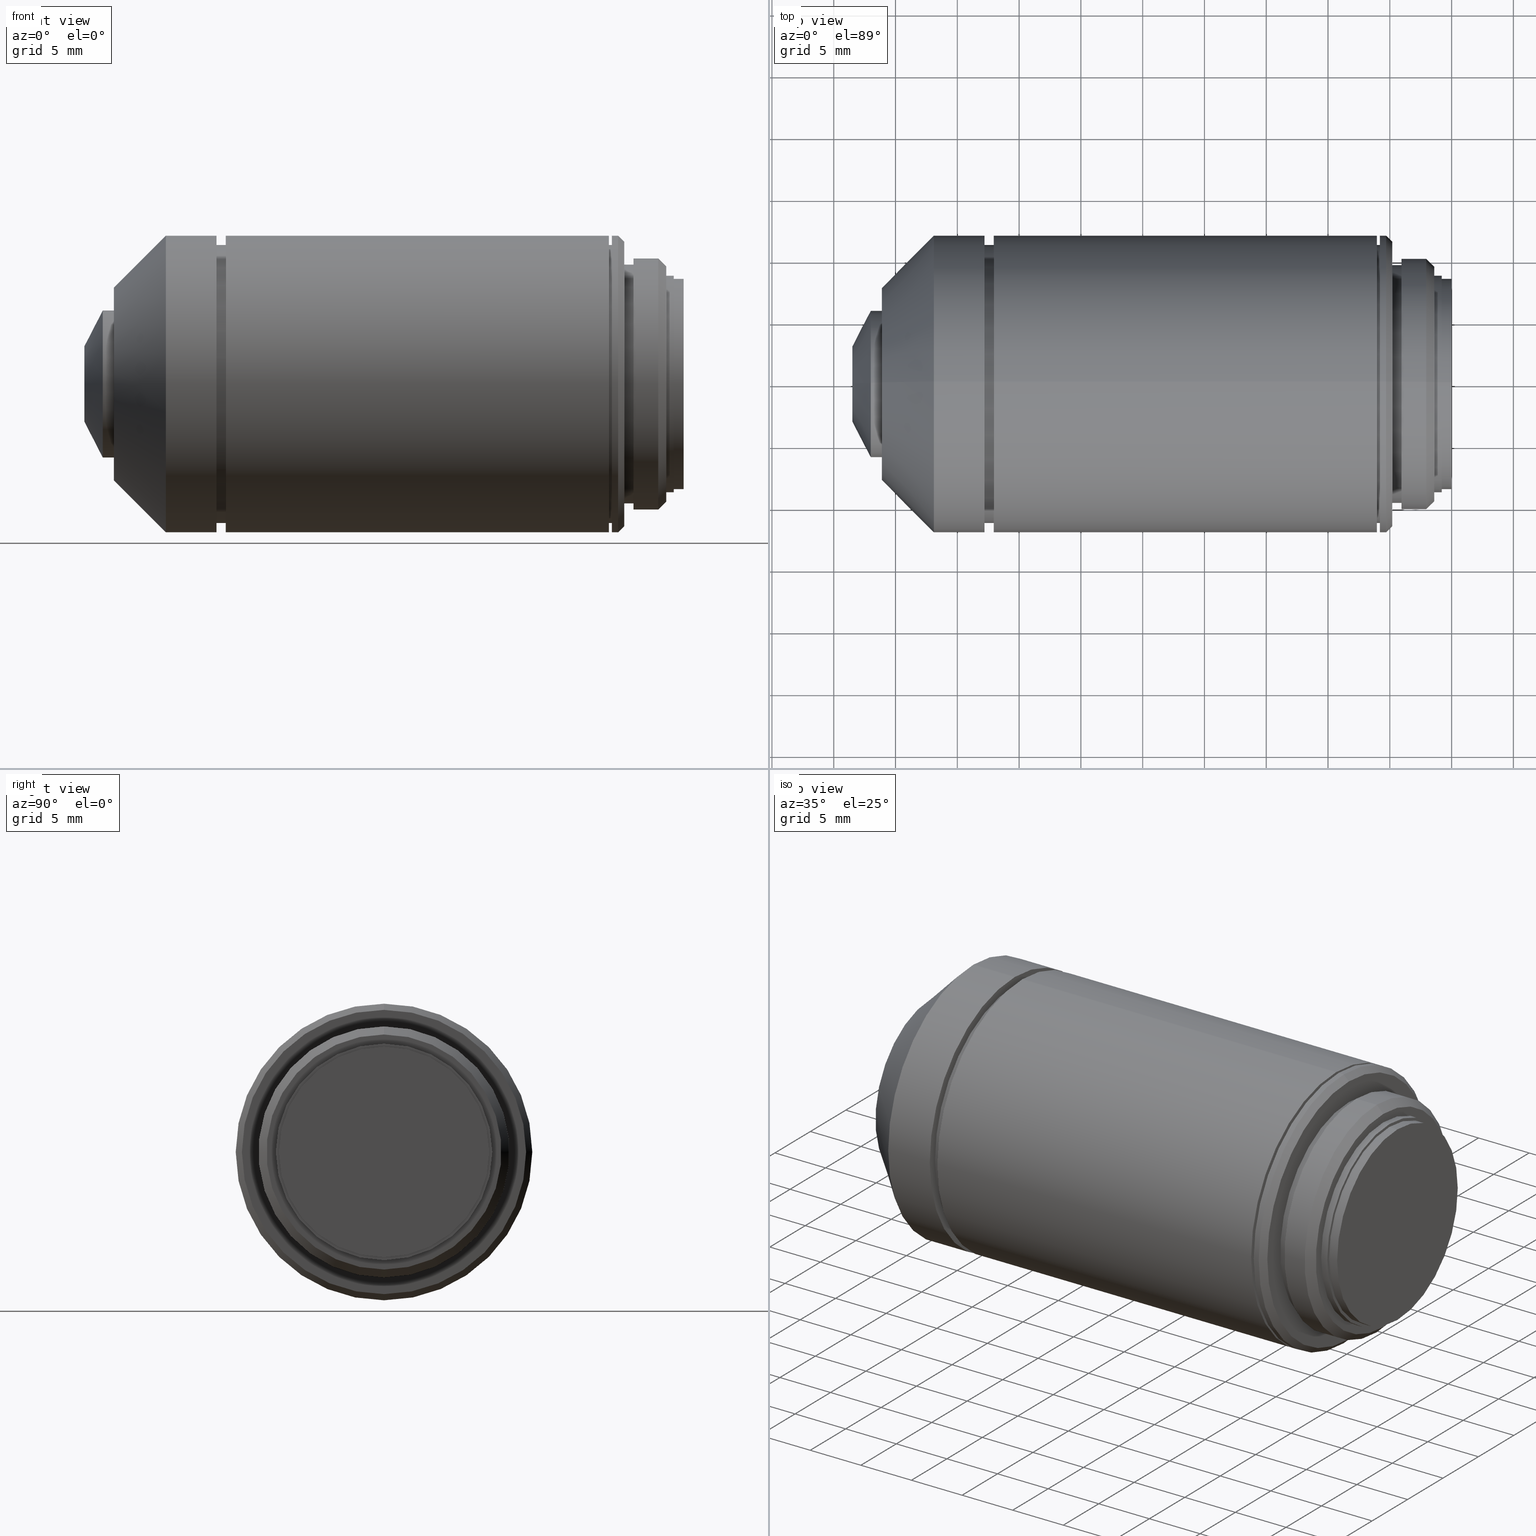
[diagram: canonical four-view strip — front | top / right | iso, engineering-drawing reading convention]
A machine part, canonical four-view strip (front | top / right | iso — engineering-drawing reading convention). The complete STEP part file that produces these views, byte-faithful:
ISO-10303-21;
HEADER;
FILE_DESCRIPTION (( 'STEP AP203' ),
    '1' );
FILE_NAME ('690064.step',
    '2025-04-14T08:43:51',
    ( 'MSI' ),
    ( '' ),
    'SwSTEP 2.0',
    'SolidWorks 2020',
    '' );
FILE_SCHEMA (( 'CONFIG_CONTROL_DESIGN' ));
ENDSEC;

DATA;
#1 = EDGE_LOOP ( 'NONE', ( #1015, #723, #824, #560 ) ) ;
#2 = DIRECTION ( 'NONE',  ( 1.000000000000000000, 0.000000000000000000, 0.000000000000000000 ) ) ;
#3 = DIRECTION ( 'NONE',  ( 1.000000000000000000, 0.000000000000000000, 0.000000000000000000 ) ) ;
#4 = EDGE_CURVE ( 'NONE', #915, #930, #1031, .T. ) ;
#5 = AXIS2_PLACEMENT_3D ( 'NONE', #633, #379, #454 ) ;
#6 = CARTESIAN_POINT ( 'NONE',  ( -0.8000000000000000444, 0.000000000000000000, -8.509999999999999787 ) ) ;
#7 = DIRECTION ( 'NONE',  ( 1.000000000000000000, 0.000000000000000000, 0.000000000000000000 ) ) ;
#8 = CARTESIAN_POINT ( 'NONE',  ( 29.85526709101650056, 0.000000000000000000, 0.000000000000000000 ) ) ;
#9 = CC_DESIGN_PERSON_AND_ORGANIZATION_ASSIGNMENT ( #416, #489, ( #591 ) ) ;
#10 = CARTESIAN_POINT ( 'NONE',  ( -0.8000000000000000444, 8.759999999999999787, 0.000000000000000000 ) ) ;
#11 = DIRECTION ( 'NONE',  ( 1.000000000000000000, 0.000000000000000000, 0.000000000000000000 ) ) ;
#12 = CARTESIAN_POINT ( 'NONE',  ( 29.85526709101650056, 0.000000000000000000, 0.000000000000000000 ) ) ;
#13 = FACE_OUTER_BOUND ( 'NONE', #1009, .T. ) ;
#14 = AXIS2_PLACEMENT_3D ( 'NONE', #599, #181, #435 ) ;
#15 = EDGE_CURVE ( 'NONE', #122, #915, #595, .T. ) ;
#16 = CIRCLE ( 'NONE', #456, 7.799999999999999822 ) ;
#17 = DIRECTION ( 'NONE',  ( 1.000000000000000000, 0.000000000000000000, 0.000000000000000000 ) ) ;
#18 = CONICAL_SURFACE ( 'NONE', #1010, 5.950000000000000178, 1.096175221382899689 ) ;
#19 = LINE ( 'NONE', #112, #779 ) ;
#20 = CARTESIAN_POINT ( 'NONE',  ( -41.89999999999999858, 0.000000000000000000, -12.00000000000000000 ) ) ;
#21 = ORIENTED_EDGE ( 'NONE', *, *, #370, .F. ) ;
#22 = AXIS2_PLACEMENT_3D ( 'NONE', #811, #1046, #1054 ) ;
#23 = EDGE_CURVE ( 'NONE', #556, #890, #145, .T. ) ;
#24 = DIRECTION ( 'NONE',  ( 1.000000000000000000, 0.000000000000000000, 0.000000000000000000 ) ) ;
#25 = DIRECTION ( 'NONE',  ( 1.000000000000000000, 0.000000000000000000, 0.000000000000000000 ) ) ;
#26 = COORDINATED_UNIVERSAL_TIME_OFFSET ( 8, 0, .AHEAD. ) ;
#27 = ORIENTED_EDGE ( 'NONE', *, *, #1020, .F. ) ;
#28 = DIRECTION ( 'NONE',  ( 1.000000000000000000, 0.000000000000000000, 0.000000000000000000 ) ) ;
#29 = DIRECTION ( 'NONE',  ( 0.000000000000000000, 0.000000000000000000, -1.000000000000000000 ) ) ;
#30 = VECTOR ( 'NONE', #995, 1000.000000000000000 ) ;
#31 = EDGE_LOOP ( 'NONE', ( #948, #235 ) ) ;
#32 = DIRECTION ( 'NONE',  ( 0.000000000000000000, 0.000000000000000000, -1.000000000000000000 ) ) ;
#33 = AXIS2_PLACEMENT_3D ( 'NONE', #1090, #335, #360 ) ;
#34 = APPROVAL_PERSON_ORGANIZATION ( #597, #387, #101 ) ;
#35 = CARTESIAN_POINT ( 'NONE',  ( -1.399999999999999911, 1.164639105989131874E-15, -9.509999999999999787 ) ) ;
#36 = EDGE_CURVE ( 'NONE', #728, #763, #770, .T. ) ;
#37 = ORIENTED_EDGE ( 'NONE', *, *, #822, .F. ) ;
#38 = CIRCLE ( 'NONE', #346, 11.25000000000000000 ) ;
#39 = CARTESIAN_POINT ( 'NONE',  ( 29.85526709101650056, 0.000000000000000000, 0.000000000000000000 ) ) ;
#40 = CARTESIAN_POINT ( 'NONE',  ( -41.89999999999999858, 0.000000000000000000, 0.000000000000000000 ) ) ;
#41 = CC_DESIGN_PERSON_AND_ORGANIZATION_ASSIGNMENT ( #428, #530, ( #726 ) ) ;
#42 = EDGE_LOOP ( 'NONE', ( #634, #1041 ) ) ;
#43 = DIRECTION ( 'NONE',  ( 0.000000000000000000, 0.000000000000000000, -1.000000000000000000 ) ) ;
#44 = CARTESIAN_POINT ( 'NONE',  ( -5.799999999999999822, 11.25000000000000000, 0.000000000000000000 ) ) ;
#45 = EDGE_LOOP ( 'NONE', ( #1060, #496 ) ) ;
#46 = AXIS2_PLACEMENT_3D ( 'NONE', #653, #62, #570 ) ;
#47 = ADVANCED_FACE ( 'NONE', ( #187, #97 ), #600, .T. ) ;
#48 = ORIENTED_EDGE ( 'NONE', *, *, #237, .F. ) ;
#49 = DIRECTION ( 'NONE',  ( 1.000000000000000000, 0.000000000000000000, 0.000000000000000000 ) ) ;
#50 = DIRECTION ( 'NONE',  ( 0.000000000000000000, 0.000000000000000000, -1.000000000000000000 ) ) ;
#51 = CIRCLE ( 'NONE', #626, 11.25000000000000000 ) ;
#52 = ORIENTED_EDGE ( 'NONE', *, *, #175, .T. ) ;
#53 = VECTOR ( 'NONE', #613, 1000.000000000000000 ) ;
#54 = EDGE_CURVE ( 'NONE', #423, #322, #906, .T. ) ;
#55 = VERTEX_POINT ( 'NONE', #1030 ) ;
#56 = CARTESIAN_POINT ( 'NONE',  ( -4.799999999999999822, 0.000000000000000000, 0.000000000000000000 ) ) ;
#57 = DIRECTION ( 'NONE',  ( 0.000000000000000000, 0.000000000000000000, -1.000000000000000000 ) ) ;
#58 = ORIENTED_EDGE ( 'NONE', *, *, #431, .T. ) ;
#59 = DIRECTION ( 'NONE',  ( 1.000000000000000000, 0.000000000000000000, 0.000000000000000000 ) ) ;
#60 = EDGE_LOOP ( 'NONE', ( #759, #571 ) ) ;
#61 = LINE ( 'NONE', #841, #725 ) ;
#62 = DIRECTION ( 'NONE',  ( -1.000000000000000000, 0.000000000000000000, 0.000000000000000000 ) ) ;
#63 = ORIENTED_EDGE ( 'NONE', *, *, #888, .T. ) ;
#64 = DIRECTION ( 'NONE',  ( 0.000000000000000000, 0.000000000000000000, -1.000000000000000000 ) ) ;
#65 = VERTEX_POINT ( 'NONE', #623 ) ;
#66 = AXIS2_PLACEMENT_3D ( 'NONE', #758, #409, #828 ) ;
#67 = DIRECTION ( 'NONE',  ( 1.000000000000000000, 0.000000000000000000, 0.000000000000000000 ) ) ;
#68 = CARTESIAN_POINT ( 'NONE',  ( -4.799999999999999822, 0.000000000000000000, 0.000000000000000000 ) ) ;
#69 = CIRCLE ( 'NONE', #209, 11.25000000000000000 ) ;
#70 = ADVANCED_FACE ( 'NONE', ( #950 ), #1048, .T. ) ;
#71 = ORIENTED_EDGE ( 'NONE', *, *, #200, .T. ) ;
#72 = VECTOR ( 'NONE', #244, 1000.000000000000000 ) ;
#73 = DATE_AND_TIME ( #495, #801 ) ;
#74 = VERTEX_POINT ( 'NONE', #193 ) ;
#75 = CARTESIAN_POINT ( 'NONE',  ( -46.10000000000000142, 1.212400331155879899E-15, 7.799999999999999822 ) ) ;
#76 = LINE ( 'NONE', #677, #1007 ) ;
#77 = AXIS2_PLACEMENT_3D ( 'NONE', #10, #684, #694 ) ;
#78 = VERTEX_POINT ( 'NONE', #6 ) ;
#79 = EDGE_CURVE ( 'NONE', #561, #890, #178, .T. ) ;
#80 = ORIENTED_EDGE ( 'NONE', *, *, #337, .F. ) ;
#81 = DIRECTION ( 'NONE',  ( 1.000000000000000000, 0.000000000000000000, 0.000000000000000000 ) ) ;
#82 = PLANE ( 'NONE',  #404 ) ;
#83 = ORIENTED_EDGE ( 'NONE', *, *, #337, .T. ) ;
#84 = COORDINATED_UNIVERSAL_TIME_OFFSET ( 8, 0, .AHEAD. ) ;
#85 = ORIENTED_EDGE ( 'NONE', *, *, #522, .F. ) ;
#86 = ADVANCED_FACE ( 'NONE', ( #116 ), #519, .T. ) ;
#87 = DIRECTION ( 'NONE',  ( 1.000000000000000000, 0.000000000000000000, 0.000000000000000000 ) ) ;
#88 = AXIS2_PLACEMENT_3D ( 'NONE', #376, #1050, #391 ) ;
#89 = CARTESIAN_POINT ( 'NONE',  ( -48.48999999999999488, 3.050000000000000266, 0.000000000000000000 ) ) ;
#90 = DIRECTION ( 'NONE',  ( 1.000000000000000000, 0.000000000000000000, 0.000000000000000000 ) ) ;
#91 = AXIS2_PLACEMENT_3D ( 'NONE', #542, #1049, #872 ) ;
#92 = PERSON_AND_ORGANIZATION ( #336, #458 ) ;
#93 = CIRCLE ( 'NONE', #990, 10.16000000000000014 ) ;
#94 = CARTESIAN_POINT ( 'NONE',  ( -46.10000000000000142, 7.799999999999999822, 0.000000000000000000 ) ) ;
#95 = ADVANCED_FACE ( 'NONE', ( #1023, #617 ), #854, .T. ) ;
#96 = PLANE ( 'NONE',  #14 ) ;
#97 = FACE_BOUND ( 'NONE', #31, .T. ) ;
#98 = CARTESIAN_POINT ( 'NONE',  ( -47.00000000000000000, 0.000000000000000000, 0.000000000000000000 ) ) ;
#99 = PLANE ( 'NONE',  #157 ) ;
#100 = CARTESIAN_POINT ( 'NONE',  ( -5.799999999999999822, 0.000000000000000000, -11.25000000000000000 ) ) ;
#101 = APPROVAL_ROLE ( '' ) ;
#102 = CARTESIAN_POINT ( 'NONE',  ( -6.049999999999999822, 0.000000000000000000, 0.000000000000000000 ) ) ;
#103 = LINE ( 'NONE', #425, #692 ) ;
#104 = DIRECTION ( 'NONE',  ( 1.000000000000000000, 0.000000000000000000, 0.000000000000000000 ) ) ;
#105 = AXIS2_PLACEMENT_3D ( 'NONE', #847, #24, #523 ) ;
#106 = EDGE_CURVE ( 'NONE', #230, #154, #38, .T. ) ;
#107 = APPROVAL_STATUS ( 'not_yet_approved' ) ;
#108 = VERTEX_POINT ( 'NONE', #20 ) ;
#109 = CIRCLE ( 'NONE', #341, 7.799999999999999822 ) ;
#110 = EDGE_LOOP ( 'NONE', ( #243, #812, #1077, #920 ) ) ;
#111 = APPROVAL_PERSON_ORGANIZATION ( #914, #829, #311 ) ;
#112 = CARTESIAN_POINT ( 'NONE',  ( 29.85526709101650056, 1.183008807976344079E-15, 9.660000000000000142 ) ) ;
#113 = DIRECTION ( 'NONE',  ( 0.000000000000000000, 0.000000000000000000, -1.000000000000000000 ) ) ;
#114 = ORIENTED_EDGE ( 'NONE', *, *, #715, .T. ) ;
#115 = CARTESIAN_POINT ( 'NONE',  ( -37.79999999999999716, 0.000000000000000000, -12.00000000000000000 ) ) ;
#116 = FACE_OUTER_BOUND ( 'NONE', #679, .T. ) ;
#117 = VERTEX_POINT ( 'NONE', #777 ) ;
#118 = EDGE_CURVE ( 'NONE', #639, #55, #572, .T. ) ;
#119 = DIRECTION ( 'NONE',  ( 1.000000000000000000, 0.000000000000000000, 0.000000000000000000 ) ) ;
#120 = CARTESIAN_POINT ( 'NONE',  ( -41.89999999999999858, 0.000000000000000000, -12.00000000000000000 ) ) ;
#121 = AXIS2_PLACEMENT_3D ( 'NONE', #547, #554, #718 ) ;
#122 = VERTEX_POINT ( 'NONE', #782 ) ;
#123 = DIRECTION ( 'NONE',  ( 0.000000000000000000, 0.000000000000000000, -1.000000000000000000 ) ) ;
#124 = AXIS2_PLACEMENT_3D ( 'NONE', #506, #81, #394 ) ;
#125 = CC_DESIGN_PERSON_AND_ORGANIZATION_ASSIGNMENT ( #1081, #326, ( #319 ) ) ;
#126 = APPLICATION_CONTEXT ( 'configuration controlled 3d designs of mechanical parts and assemblies' ) ;
#127 = CC_DESIGN_SECURITY_CLASSIFICATION ( #478, ( #726 ) ) ;
#128 = CYLINDRICAL_SURFACE ( 'NONE', #88, 11.25000000000000000 ) ;
#129 = ORIENTED_EDGE ( 'NONE', *, *, #844, .T. ) ;
#130 = DIRECTION ( 'NONE',  ( 0.000000000000000000, 0.000000000000000000, 1.000000000000000000 ) ) ;
#131 = DIRECTION ( 'NONE',  ( -0.7071067811865460184, 8.659560562354948882E-17, -0.7071067811865489050 ) ) ;
#132 = ADVANCED_FACE ( 'NONE', ( #13 ), #687, .T. ) ;
#133 = ORIENTED_EDGE ( 'NONE', *, *, #1082, .F. ) ;
#134 = ORIENTED_EDGE ( 'NONE', *, *, #4, .T. ) ;
#135 = LINE ( 'NONE', #382, #970 ) ;
#136 = CYLINDRICAL_SURFACE ( 'NONE', #259, 10.16000000000000014 ) ;
#137 = ORIENTED_EDGE ( 'NONE', *, *, #553, .T. ) ;
#138 = ADVANCED_FACE ( 'NONE', ( #941 ), #482, .T. ) ;
#139 = VECTOR ( 'NONE', #738, 1000.000000000000000 ) ;
#140 = ORIENTED_EDGE ( 'NONE', *, *, #200, .F. ) ;
#141 = FACE_OUTER_BOUND ( 'NONE', #577, .T. ) ;
#142 = CIRCLE ( 'NONE', #407, 11.50000000000000000 ) ;
#143 = DIRECTION ( 'NONE',  ( 0.000000000000000000, 0.000000000000000000, -1.000000000000000000 ) ) ;
#144 = EDGE_LOOP ( 'NONE', ( #223, #999, #295, #1055 ) ) ;
#145 = CIRCLE ( 'NONE', #462, 11.25000000000000000 ) ;
#146 = VERTEX_POINT ( 'NONE', #348 ) ;
#147 = PLANE ( 'NONE',  #339 ) ;
#148 = CARTESIAN_POINT ( 'NONE',  ( -5.698905636047159547E-16, 8.509999999999999787, 0.000000000000000000 ) ) ;
#149 = ORIENTED_EDGE ( 'NONE', *, *, #4, .F. ) ;
#150 = EDGE_LOOP ( 'NONE', ( #377, #137 ) ) ;
#151 = CARTESIAN_POINT ( 'NONE',  ( -1.399999999999999911, 0.000000000000000000, 0.000000000000000000 ) ) ;
#152 = ADVANCED_FACE ( 'NONE', ( #788 ), #698, .T. ) ;
#153 = DIRECTION ( 'NONE',  ( 1.000000000000000000, 0.000000000000000000, 0.000000000000000000 ) ) ;
#154 = VERTEX_POINT ( 'NONE', #100 ) ;
#155 = CYLINDRICAL_SURFACE ( 'NONE', #586, 12.00000000000000000 ) ;
#156 = ORIENTED_EDGE ( 'NONE', *, *, #1020, .T. ) ;
#157 = AXIS2_PLACEMENT_3D ( 'NONE', #89, #853, #527 ) ;
#158 = CARTESIAN_POINT ( 'NONE',  ( -37.04999999999999716, 1.469576158976823947E-15, 12.00000000000000000 ) ) ;
#159 = DIRECTION ( 'NONE',  ( 1.000000000000000000, 0.000000000000000000, 0.000000000000000000 ) ) ;
#160 = ADVANCED_FACE ( 'NONE', ( #367 ), #1019, .T. ) ;
#161 = EDGE_LOOP ( 'NONE', ( #220, #568, #83, #927 ) ) ;
#162 = CIRCLE ( 'NONE', #263, 12.00000000000000000 ) ;
#163 = APPLICATION_PROTOCOL_DEFINITION ( 'international standard', 'config_control_design', 1994, #954 ) ;
#164 = CC_DESIGN_APPROVAL ( #829, ( #319 ) ) ;
#165 = ORIENTED_EDGE ( 'NONE', *, *, #631, .T. ) ;
#166 = DIRECTION ( 'NONE',  ( 1.000000000000000000, 0.000000000000000000, 0.000000000000000000 ) ) ;
#167 = CARTESIAN_POINT ( 'NONE',  ( -6.049999999999999822, 0.000000000000000000, 0.000000000000000000 ) ) ;
#168 = ORIENTED_EDGE ( 'NONE', *, *, #1067, .T. ) ;
#169 = ADVANCED_FACE ( 'NONE', ( #540 ), #362, .T. ) ;
#170 = DIRECTION ( 'NONE',  ( 1.000000000000000000, 0.000000000000000000, 0.000000000000000000 ) ) ;
#171 = VERTEX_POINT ( 'NONE', #798 ) ;
#172 = DIRECTION ( 'NONE',  ( 1.000000000000000000, 0.000000000000000000, 0.000000000000000000 ) ) ;
#173 = DIRECTION ( 'NONE',  ( 1.000000000000000000, 0.000000000000000000, 0.000000000000000000 ) ) ;
#174 = ORIENTED_EDGE ( 'NONE', *, *, #449, .F. ) ;
#175 = EDGE_CURVE ( 'NONE', #564, #78, #696, .T. ) ;
#176 = CARTESIAN_POINT ( 'NONE',  ( -4.799999999999999822, 0.000000000000000000, 11.50000000000000000 ) ) ;
#177 = DIRECTION ( 'NONE',  ( 1.000000000000000000, 0.000000000000000000, 0.000000000000000000 ) ) ;
#178 = LINE ( 'NONE', #863, #53 ) ;
#179 = AXIS2_PLACEMENT_3D ( 'NONE', #320, #590, #64 ) ;
#180 = LINE ( 'NONE', #520, #567 ) ;
#181 = DIRECTION ( 'NONE',  ( 1.000000000000000000, 0.000000000000000000, 0.000000000000000000 ) ) ;
#182 = CARTESIAN_POINT ( 'NONE',  ( 29.85526709101650056, 0.000000000000000000, 0.000000000000000000 ) ) ;
#183 = COORDINATED_UNIVERSAL_TIME_OFFSET ( 8, 0, .AHEAD. ) ;
#184 = CARTESIAN_POINT ( 'NONE',  ( 29.85526709101650056, 1.469576158976821975E-15, 12.00000000000000000 ) ) ;
#185 = DIRECTION ( 'NONE',  ( 1.000000000000000000, 0.000000000000000000, 0.000000000000000000 ) ) ;
#186 = EDGE_CURVE ( 'NONE', #672, #397, #1014, .T. ) ;
#187 = FACE_OUTER_BOUND ( 'NONE', #42, .T. ) ;
#188 = CALENDAR_DATE ( 2025, 14, 4 ) ;
#189 = ORIENTED_EDGE ( 'NONE', *, *, #1025, .F. ) ;
#190 = CARTESIAN_POINT ( 'NONE',  ( -37.04999999999999716, 0.000000000000000000, -11.25000000000000000 ) ) ;
#191 = CONICAL_SURFACE ( 'NONE', #207, 5.950000000000000178, 1.096175221382899689 ) ;
#192 = EDGE_CURVE ( 'NONE', #322, #423, #539, .T. ) ;
#193 = CARTESIAN_POINT ( 'NONE',  ( -1.399999999999999911, 0.000000000000000000, -8.759999999999999787 ) ) ;
#194 = ORIENTED_EDGE ( 'NONE', *, *, #871, .F. ) ;
#195 = CONICAL_SURFACE ( 'NONE', #228, 12.00000000000000000, 0.7853981633974476129 ) ;
#196 = CARTESIAN_POINT ( 'NONE',  ( -37.04999999999999716, 0.000000000000000000, -12.00000000000000000 ) ) ;
#197 = CARTESIAN_POINT ( 'NONE',  ( -1.399999999999999911, 0.000000000000000000, 0.000000000000000000 ) ) ;
#198 = AXIS2_PLACEMENT_3D ( 'NONE', #534, #104, #432 ) ;
#199 = ORIENTED_EDGE ( 'NONE', *, *, #959, .F. ) ;
#200 = EDGE_CURVE ( 'NONE', #410, #463, #285, .T. ) ;
#201 = CARTESIAN_POINT ( 'NONE',  ( -48.48999999999999488, 0.000000000000000000, 0.000000000000000000 ) ) ;
#202 = FACE_OUTER_BOUND ( 'NONE', #380, .T. ) ;
#203 = ORIENTED_EDGE ( 'NONE', *, *, #365, .F. ) ;
#204 = ADVANCED_FACE ( 'NONE', ( #1058 ), #136, .T. ) ;
#205 = CARTESIAN_POINT ( 'NONE',  ( -37.04999999999999716, 0.000000000000000000, 0.000000000000000000 ) ) ;
#206 = DIRECTION ( 'NONE',  ( 0.000000000000000000, 0.000000000000000000, -1.000000000000000000 ) ) ;
#207 = AXIS2_PLACEMENT_3D ( 'NONE', #786, #173, #612 ) ;
#208 = ORIENTED_EDGE ( 'NONE', *, *, #968, .T. ) ;
#209 = AXIS2_PLACEMENT_3D ( 'NONE', #891, #49, #375 ) ;
#210 = CARTESIAN_POINT ( 'NONE',  ( -2.050000000000000266, 0.000000000000000000, 10.16000000000000014 ) ) ;
#211 = VECTOR ( 'NONE', #255, 1000.000000000000000 ) ;
#212 = ADVANCED_FACE ( 'NONE', ( #293 ), #128, .T. ) ;
#213 = LOCAL_TIME ( 16, 43, 51.00000000000000000, #26 ) ;
#214 = CARTESIAN_POINT ( 'NONE',  ( -6.049999999999999822, 0.000000000000000000, -12.00000000000000000 ) ) ;
#215 = ORIENTED_EDGE ( 'NONE', *, *, #683, .F. ) ;
#216 = CARTESIAN_POINT ( 'NONE',  ( -1.399999999999999911, 0.000000000000000000, 0.000000000000000000 ) ) ;
#217 = DIRECTION ( 'NONE',  ( 0.000000000000000000, 0.000000000000000000, -1.000000000000000000 ) ) ;
#218 = ADVANCED_FACE ( 'NONE', ( #202, #460 ), #290, .T. ) ;
#219 = VERTEX_POINT ( 'NONE', #214 ) ;
#220 = ORIENTED_EDGE ( 'NONE', *, *, #79, .F. ) ;
#221 = CARTESIAN_POINT ( 'NONE',  ( -6.049999999999999822, 0.000000000000000000, 0.000000000000000000 ) ) ;
#222 = DIRECTION ( 'NONE',  ( 1.000000000000000000, 0.000000000000000000, 0.000000000000000000 ) ) ;
#223 = ORIENTED_EDGE ( 'NONE', *, *, #968, .F. ) ;
#224 = VECTOR ( 'NONE', #299, 1000.000000000000000 ) ;
#225 = FACE_OUTER_BOUND ( 'NONE', #1002, .T. ) ;
#226 = ORIENTED_EDGE ( 'NONE', *, *, #643, .F. ) ;
#227 = CARTESIAN_POINT ( 'NONE',  ( 29.85526709101650056, 0.000000000000000000, 0.000000000000000000 ) ) ;
#228 = AXIS2_PLACEMENT_3D ( 'NONE', #832, #583, #662 ) ;
#229 = CARTESIAN_POINT ( 'NONE',  ( -4.049999999999999822, 9.660000000000000142, 0.000000000000000000 ) ) ;
#230 = VERTEX_POINT ( 'NONE', #965 ) ;
#231 = EDGE_CURVE ( 'NONE', #78, #564, #471, .T. ) ;
#232 = EDGE_LOOP ( 'NONE', ( #793, #502 ) ) ;
#233 = DIRECTION ( 'NONE',  ( 0.000000000000000000, 0.000000000000000000, -1.000000000000000000 ) ) ;
#234 = CARTESIAN_POINT ( 'NONE',  ( -1.399999999999999911, 1.204440126961421862E-15, -9.509999999999999787 ) ) ;
#235 = ORIENTED_EDGE ( 'NONE', *, *, #175, .F. ) ;
#236 =( NAMED_UNIT ( * ) SI_UNIT ( $, .STERADIAN. ) SOLID_ANGLE_UNIT ( ) );
#237 = EDGE_CURVE ( 'NONE', #741, #953, #333, .T. ) ;
#238 = ORIENTED_EDGE ( 'NONE', *, *, #1032, .F. ) ;
#239 = CARTESIAN_POINT ( 'NONE',  ( 29.85526709101650056, 0.000000000000000000, 0.000000000000000000 ) ) ;
#240 = CARTESIAN_POINT ( 'NONE',  ( -5.799999999999999822, 0.000000000000000000, 0.000000000000000000 ) ) ;
#241 = EDGE_LOOP ( 'NONE', ( #1080, #913, #490, #1068 ) ) ;
#242 =( NAMED_UNIT ( * ) PLANE_ANGLE_UNIT ( ) SI_UNIT ( $, .RADIAN. ) );
#243 = ORIENTED_EDGE ( 'NONE', *, *, #785, .F. ) ;
#244 = DIRECTION ( 'NONE',  ( 1.000000000000000000, 0.000000000000000000, 0.000000000000000000 ) ) ;
#245 = DIRECTION ( 'NONE',  ( 1.000000000000000000, 0.000000000000000000, 0.000000000000000000 ) ) ;
#246 = EDGE_CURVE ( 'NONE', #305, #505, #934, .T. ) ;
#247 = ORIENTED_EDGE ( 'NONE', *, *, #924, .F. ) ;
#248 = AXIS2_PLACEMENT_3D ( 'NONE', #1021, #7, #780 ) ;
#249 = CARTESIAN_POINT ( 'NONE',  ( -2.050000000000000266, 0.000000000000000000, 0.000000000000000000 ) ) ;
#250 = EDGE_LOOP ( 'NONE', ( #327, #978, #835, #399 ) ) ;
#251 = DIRECTION ( 'NONE',  ( 0.000000000000000000, 0.000000000000000000, -1.000000000000000000 ) ) ;
#252 = DIRECTION ( 'NONE',  ( 1.000000000000000000, 0.000000000000000000, 0.000000000000000000 ) ) ;
#253 = EDGE_CURVE ( 'NONE', #510, #230, #803, .T. ) ;
#254 = ORIENTED_EDGE ( 'NONE', *, *, #756, .F. ) ;
#255 = DIRECTION ( 'NONE',  ( 1.000000000000000000, 0.000000000000000000, 0.000000000000000000 ) ) ;
#256 = DIRECTION ( 'NONE',  ( 0.000000000000000000, 0.000000000000000000, -1.000000000000000000 ) ) ;
#257 = CARTESIAN_POINT ( 'NONE',  ( 29.85526709101650056, 0.000000000000000000, 0.000000000000000000 ) ) ;
#258 = DIRECTION ( 'NONE',  ( 1.000000000000000000, 0.000000000000000000, 0.000000000000000000 ) ) ;
#259 = AXIS2_PLACEMENT_3D ( 'NONE', #714, #962, #981 ) ;
#260 = LINE ( 'NONE', #517, #637 ) ;
#261 = CARTESIAN_POINT ( 'NONE',  ( 29.85526709101650056, 0.000000000000000000, 0.000000000000000000 ) ) ;
#262 = PERSON_AND_ORGANIZATION_ROLE ( 'classification_officer' ) ;
#263 = AXIS2_PLACEMENT_3D ( 'NONE', #860, #2, #344 ) ;
#264 = CC_DESIGN_APPROVAL ( #387, ( #478 ) ) ;
#265 = EDGE_CURVE ( 'NONE', #397, #672, #620, .T. ) ;
#266 = CARTESIAN_POINT ( 'NONE',  ( -37.79999999999999716, 0.000000000000000000, 0.000000000000000000 ) ) ;
#267 = CARTESIAN_POINT ( 'NONE',  ( -0.8000000000000000444, 1.042174426074398107E-15, 8.509999999999999787 ) ) ;
#268 = CLOSED_SHELL ( 'NONE', ( #1006, #160, #169, #1038, #86, #748, #857, #862, #359, #381, #766, #790, #296, #944, #308, #132, #47, #474, #509, #70, #204, #353, #875, #95, #138, #559, #218, #212, #328, #918, #616, #152, #796, #596, #1052, #902, #1088, #484, #529 ) ) ;
#269 = DIRECTION ( 'NONE',  ( 0.000000000000000000, 0.000000000000000000, -1.000000000000000000 ) ) ;
#270 = ORIENTED_EDGE ( 'NONE', *, *, #192, .F. ) ;
#271 = CC_DESIGN_PERSON_AND_ORGANIZATION_ASSIGNMENT ( #349, #262, ( #478 ) ) ;
#272 = FACE_OUTER_BOUND ( 'NONE', #736, .T. ) ;
#273 = DIRECTION ( 'NONE',  ( 0.000000000000000000, 0.000000000000000000, -1.000000000000000000 ) ) ;
#274 = APPROVAL_DATE_TIME ( #688, #635 ) ;
#275 = VERTEX_POINT ( 'NONE', #644 ) ;
#276 = DIRECTION ( 'NONE',  ( 1.000000000000000000, 0.000000000000000000, 0.000000000000000000 ) ) ;
#277 = CIRCLE ( 'NONE', #546, 9.660000000000000142 ) ;
#278 = DIRECTION ( 'NONE',  ( 1.000000000000000000, 0.000000000000000000, 0.000000000000000000 ) ) ;
#279 = EDGE_CURVE ( 'NONE', #452, #171, #952, .T. ) ;
#280 = ORIENTED_EDGE ( 'NONE', *, *, #279, .F. ) ;
#281 = CIRCLE ( 'NONE', #606, 3.050000000000000266 ) ;
#282 = AXIS2_PLACEMENT_3D ( 'NONE', #239, #665, #1005 ) ;
#283 = AXIS2_PLACEMENT_3D ( 'NONE', #984, #926, #59 ) ;
#284 = CYLINDRICAL_SURFACE ( 'NONE', #315, 12.00000000000000000 ) ;
#285 = LINE ( 'NONE', #35, #879 ) ;
#286 = AXIS2_PLACEMENT_3D ( 'NONE', #524, #869, #1035 ) ;
#287 = EDGE_CURVE ( 'NONE', #843, #108, #558, .T. ) ;
#288 = ORIENTED_EDGE ( 'NONE', *, *, #715, .F. ) ;
#289 = CARTESIAN_POINT ( 'NONE',  ( -4.049999999999999822, 1.183008807976341910E-15, 9.660000000000000142 ) ) ;
#290 = PLANE ( 'NONE',  #385 ) ;
#291 = ORIENTED_EDGE ( 'NONE', *, *, #279, .T. ) ;
#292 = LINE ( 'NONE', #704, #473 ) ;
#293 = FACE_OUTER_BOUND ( 'NONE', #870, .T. ) ;
#294 = VECTOR ( 'NONE', #276, 1000.000000000000000 ) ;
#295 = ORIENTED_EDGE ( 'NONE', *, *, #449, .T. ) ;
#296 = ADVANCED_FACE ( 'NONE', ( #898 ), #470, .T. ) ;
#297 = DIRECTION ( 'NONE',  ( 1.000000000000000000, 0.000000000000000000, 0.000000000000000000 ) ) ;
#298 = AXIS2_PLACEMENT_3D ( 'NONE', #266, #610, #825 ) ;
#299 = DIRECTION ( 'NONE',  ( 1.000000000000000000, 0.000000000000000000, 0.000000000000000000 ) ) ;
#300 = ORIENTED_EDGE ( 'NONE', *, *, #695, .T. ) ;
#301 = EDGE_LOOP ( 'NONE', ( #1036, #27 ) ) ;
#302 = CARTESIAN_POINT ( 'NONE',  ( -37.79999999999999716, 12.00000000000000000, 0.000000000000000000 ) ) ;
#303 = DIRECTION ( 'NONE',  ( 0.000000000000000000, 0.000000000000000000, -1.000000000000000000 ) ) ;
#304 = VERTEX_POINT ( 'NONE', #648 ) ;
#305 = VERTEX_POINT ( 'NONE', #451 ) ;
#306 = FACE_BOUND ( 'NONE', #531, .T. ) ;
#307 = DIRECTION ( 'NONE',  ( 0.000000000000000000, 1.000000000000000000, 0.000000000000000000 ) ) ;
#308 = ADVANCED_FACE ( 'NONE', ( #792 ), #842, .T. ) ;
#309 = ORIENTED_EDGE ( 'NONE', *, *, #909, .F. ) ;
#310 = CIRCLE ( 'NONE', #66, 5.950000000000000178 ) ;
#311 = APPROVAL_ROLE ( '' ) ;
#312 = ORIENTED_EDGE ( 'NONE', *, *, #839, .F. ) ;
#313 = CARTESIAN_POINT ( 'NONE',  ( 29.85526709101650056, 0.000000000000000000, 0.000000000000000000 ) ) ;
#314 = AXIS2_PLACEMENT_3D ( 'NONE', #682, #1018, #256 ) ;
#315 = AXIS2_PLACEMENT_3D ( 'NONE', #39, #297, #378 ) ;
#316 = DIRECTION ( 'NONE',  ( 0.000000000000000000, 0.000000000000000000, -1.000000000000000000 ) ) ;
#317 = LOCAL_TIME ( 16, 43, 51.00000000000000000, #183 ) ;
#318 = ORIENTED_EDGE ( 'NONE', *, *, #565, .T. ) ;
#319 = PRODUCT_DEFINITION ( 'δ֪', '', #726, #946 ) ;
#320 = CARTESIAN_POINT ( 'NONE',  ( 29.85526709101650056, 0.000000000000000000, 0.000000000000000000 ) ) ;
#321 = AXIS2_PLACEMENT_3D ( 'NONE', #261, #363, #269 ) ;
#322 = VERTEX_POINT ( 'NONE', #746 ) ;
#323 = DIRECTION ( 'NONE',  ( 0.000000000000000000, 0.000000000000000000, -1.000000000000000000 ) ) ;
#324 = FACE_OUTER_BOUND ( 'NONE', #301, .T. ) ;
#325 = ORIENTED_EDGE ( 'NONE', *, *, #778, .F. ) ;
#326 = PERSON_AND_ORGANIZATION_ROLE ( 'creator' ) ;
#327 = ORIENTED_EDGE ( 'NONE', *, *, #36, .T. ) ;
#328 = ADVANCED_FACE ( 'NONE', ( #734, #1092 ), #82, .T. ) ;
#329 = LINE ( 'NONE', #757, #72 ) ;
#330 = CARTESIAN_POINT ( 'NONE',  ( -6.049999999999999822, 12.00000000000000000, 0.000000000000000000 ) ) ;
#331 = CARTESIAN_POINT ( 'NONE',  ( -47.00000000000000000, 0.000000000000000000, 0.000000000000000000 ) ) ;
#332 = COORDINATED_UNIVERSAL_TIME_OFFSET ( 8, 0, .AHEAD. ) ;
#333 = CIRCLE ( 'NONE', #121, 12.00000000000000000 ) ;
#334 = EDGE_LOOP ( 'NONE', ( #254, #156, #63, #488 ) ) ;
#335 = DIRECTION ( 'NONE',  ( 1.000000000000000000, 0.000000000000000000, 0.000000000000000000 ) ) ;
#336 = PERSON ( 'δָ��', 'δָ��', 'δָ��', ('δָ��'), ('δָ��'), ('δָ��') ) ;
#337 = EDGE_CURVE ( 'NONE', #750, #556, #923, .T. ) ;
#338 = DIRECTION ( 'NONE',  ( 1.000000000000000000, 0.000000000000000000, 0.000000000000000000 ) ) ;
#339 = AXIS2_PLACEMENT_3D ( 'NONE', #302, #1000, #827 ) ;
#340 = CARTESIAN_POINT ( 'NONE',  ( -47.00000000000000000, 0.000000000000000000, -5.950000000000000178 ) ) ;
#341 = AXIS2_PLACEMENT_3D ( 'NONE', #931, #771, #429 ) ;
#342 =( LENGTH_UNIT ( ) NAMED_UNIT ( * ) SI_UNIT ( .MILLI., .METRE. ) );
#343 = ORIENTED_EDGE ( 'NONE', *, *, #535, .F. ) ;
#344 = DIRECTION ( 'NONE',  ( 0.000000000000000000, 0.000000000000000000, -1.000000000000000000 ) ) ;
#345 = PRODUCT_DEFINITION_SHAPE ( 'NONE', 'NONE',  #319 ) ;
#346 = AXIS2_PLACEMENT_3D ( 'NONE', #858, #437, #113 ) ;
#347 = FACE_OUTER_BOUND ( 'NONE', #364, .T. ) ;
#348 = CARTESIAN_POINT ( 'NONE',  ( -5.799999999999999822, 1.469576158976823947E-15, 12.00000000000000000 ) ) ;
#349 = PERSON_AND_ORGANIZATION ( #336, #458 ) ;
#350 = CARTESIAN_POINT ( 'NONE',  ( 29.85526709101650056, 0.000000000000000000, 0.000000000000000000 ) ) ;
#351 = FACE_OUTER_BOUND ( 'NONE', #110, .T. ) ;
#352 = DIRECTION ( 'NONE',  ( 1.000000000000000000, 0.000000000000000000, 0.000000000000000000 ) ) ;
#353 = ADVANCED_FACE ( 'NONE', ( #324, #816 ), #671, .T. ) ;
#354 = CARTESIAN_POINT ( 'NONE',  ( -47.00000000000000000, 0.000000000000000000, -5.950000000000000178 ) ) ;
#355 = AXIS2_PLACEMENT_3D ( 'NONE', #465, #806, #29 ) ;
#356 = DIRECTION ( 'NONE',  ( 0.000000000000000000, 0.000000000000000000, -1.000000000000000000 ) ) ;
#357 = CARTESIAN_POINT ( 'NONE',  ( -4.049999999999999822, 0.000000000000000000, 0.000000000000000000 ) ) ;
#358 = SHAPE_DEFINITION_REPRESENTATION ( #345, #787 ) ;
#359 = ADVANCED_FACE ( 'NONE', ( #988 ), #760, .T. ) ;
#360 = DIRECTION ( 'NONE',  ( 0.000000000000000000, 0.000000000000000000, -1.000000000000000000 ) ) ;
#361 = CYLINDRICAL_SURFACE ( 'NONE', #797, 12.00000000000000000 ) ;
#362 = CONICAL_SURFACE ( 'NONE', #975, 12.00000000000000000, 0.7853981633974476129 ) ;
#363 = DIRECTION ( 'NONE',  ( 1.000000000000000000, 0.000000000000000000, 0.000000000000000000 ) ) ;
#364 = EDGE_LOOP ( 'NONE', ( #1047, #838 ) ) ;
#365 = EDGE_CURVE ( 'NONE', #548, #403, #277, .T. ) ;
#366 = DIRECTION ( 'NONE',  ( -0.7071067811865460184, 0.000000000000000000, 0.7071067811865489050 ) ) ;
#367 = FACE_OUTER_BOUND ( 'NONE', #658, .T. ) ;
#368 = ORIENTED_EDGE ( 'NONE', *, *, #395, .T. ) ;
#369 = CARTESIAN_POINT ( 'NONE',  ( 29.85526709101650056, 7.286648454926739146E-16, 5.950000000000000178 ) ) ;
#370 = EDGE_CURVE ( 'NONE', #65, #423, #837, .T. ) ;
#371 = AXIS2_PLACEMENT_3D ( 'NONE', #240, #153, #492 ) ;
#372 = DIRECTION ( 'NONE',  ( 0.7071067811865480168, 0.000000000000000000, -0.7071067811865470176 ) ) ;
#373 = EDGE_LOOP ( 'NONE', ( #716, #966 ) ) ;
#374 = AXIS2_PLACEMENT_3D ( 'NONE', #227, #477, #904 ) ;
#375 = DIRECTION ( 'NONE',  ( 0.000000000000000000, 0.000000000000000000, -1.000000000000000000 ) ) ;
#376 = CARTESIAN_POINT ( 'NONE',  ( 29.85526709101650056, 0.000000000000000000, 0.000000000000000000 ) ) ;
#377 = ORIENTED_EDGE ( 'NONE', *, *, #237, .T. ) ;
#378 = DIRECTION ( 'NONE',  ( 0.000000000000000000, 0.000000000000000000, -1.000000000000000000 ) ) ;
#379 = DIRECTION ( 'NONE',  ( 1.000000000000000000, 0.000000000000000000, 0.000000000000000000 ) ) ;
#380 = EDGE_LOOP ( 'NONE', ( #288, #1016 ) ) ;
#381 = ADVANCED_FACE ( 'NONE', ( #1008 ), #752, .T. ) ;
#382 = CARTESIAN_POINT ( 'NONE',  ( 29.85526709101650056, 0.000000000000000000, -8.509999999999999787 ) ) ;
#383 = CARTESIAN_POINT ( 'NONE',  ( -4.049999999999999822, 0.000000000000000000, 0.000000000000000000 ) ) ;
#384 = AXIS2_PLACEMENT_3D ( 'NONE', #629, #887, #971 ) ;
#385 = AXIS2_PLACEMENT_3D ( 'NONE', #44, #638, #707 ) ;
#386 = ORIENTED_EDGE ( 'NONE', *, *, #1032, .T. ) ;
#387 = APPROVAL ( #107, 'δָ��' ) ;
#388 = AXIS2_PLACEMENT_3D ( 'NONE', #216, #956, #469 ) ;
#389 = ORIENTED_EDGE ( 'NONE', *, *, #79, .T. ) ;
#390 = DIRECTION ( 'NONE',  ( 1.000000000000000000, 0.000000000000000000, 0.000000000000000000 ) ) ;
#391 = DIRECTION ( 'NONE',  ( 0.000000000000000000, 0.000000000000000000, -1.000000000000000000 ) ) ;
#392 = EDGE_LOOP ( 'NONE', ( #140, #1064, #318, #584 ) ) ;
#393 = EDGE_LOOP ( 'NONE', ( #907, #442 ) ) ;
#394 = DIRECTION ( 'NONE',  ( 0.000000000000000000, 0.000000000000000000, -1.000000000000000000 ) ) ;
#395 = EDGE_CURVE ( 'NONE', #731, #481, #739, .T. ) ;
#396 = DIRECTION ( 'NONE',  ( -1.000000000000000000, 0.000000000000000000, 0.000000000000000000 ) ) ;
#397 = VERTEX_POINT ( 'NONE', #666 ) ;
#398 = MECHANICAL_CONTEXT ( 'NONE', #954, 'mechanical' ) ;
#399 = ORIENTED_EDGE ( 'NONE', *, *, #951, .F. ) ;
#400 = FACE_BOUND ( 'NONE', #831, .T. ) ;
#401 = CARTESIAN_POINT ( 'NONE',  ( 29.85526709101650056, 1.072790596053079921E-15, 8.759999999999999787 ) ) ;
#402 = EDGE_CURVE ( 'NONE', #548, #397, #587, .T. ) ;
#403 = VERTEX_POINT ( 'NONE', #660 ) ;
#404 = AXIS2_PLACEMENT_3D ( 'NONE', #330, #1066, #487 ) ;
#405 = ORIENTED_EDGE ( 'NONE', *, *, #436, .T. ) ;
#406 = DIRECTION ( 'NONE',  ( 1.000000000000000000, 0.000000000000000000, 0.000000000000000000 ) ) ;
#407 = AXIS2_PLACEMENT_3D ( 'NONE', #876, #1043, #43 ) ;
#408 = AXIS2_PLACEMENT_3D ( 'NONE', #56, #67, #751 ) ;
#409 = DIRECTION ( 'NONE',  ( 1.000000000000000000, 0.000000000000000000, 0.000000000000000000 ) ) ;
#410 = VERTEX_POINT ( 'NONE', #234 ) ;
#411 = APPROVAL_DATE_TIME ( #73, #829 ) ;
#412 = EDGE_LOOP ( 'NONE', ( #114, #1086, #1083, #343 ) ) ;
#413 = DIRECTION ( 'NONE',  ( 1.000000000000000000, 0.000000000000000000, 0.000000000000000000 ) ) ;
#414 = CARTESIAN_POINT ( 'NONE',  ( -5.299999999999999822, 0.000000000000000000, 12.00000000000000000 ) ) ;
#415 = ORIENTED_EDGE ( 'NONE', *, *, #602, .F. ) ;
#416 = PERSON_AND_ORGANIZATION ( #336, #458 ) ;
#417 = EDGE_CURVE ( 'NONE', #731, #171, #1001, .T. ) ;
#418 = EDGE_LOOP ( 'NONE', ( #203, #325 ) ) ;
#419 = DIRECTION ( 'NONE',  ( 1.000000000000000000, 0.000000000000000000, 0.000000000000000000 ) ) ;
#420 = CARTESIAN_POINT ( 'NONE',  ( -0.8000000000000000444, 1.072790596053079921E-15, 8.759999999999999787 ) ) ;
#421 = DIRECTION ( 'NONE',  ( 1.000000000000000000, 0.000000000000000000, 0.000000000000000000 ) ) ;
#422 = AXIS2_PLACEMENT_3D ( 'NONE', #1085, #252, #143 ) ;
#423 = VERTEX_POINT ( 'NONE', #420 ) ;
#424 = DIRECTION ( 'NONE',  ( -1.000000000000000000, 0.000000000000000000, 0.000000000000000000 ) ) ;
#425 = CARTESIAN_POINT ( 'NONE',  ( 29.85526709101650056, 1.042174426074398107E-15, 8.509999999999999787 ) ) ;
#426 = CIRCLE ( 'NONE', #408, 9.660000000000000142 ) ;
#427 = DIRECTION ( 'NONE',  ( 0.000000000000000000, 0.000000000000000000, -1.000000000000000000 ) ) ;
#428 = PERSON_AND_ORGANIZATION ( #336, #458 ) ;
#429 = DIRECTION ( 'NONE',  ( 0.000000000000000000, 0.000000000000000000, -1.000000000000000000 ) ) ;
#430 = LINE ( 'NONE', #605, #294 ) ;
#431 = EDGE_CURVE ( 'NONE', #154, #230, #654, .T. ) ;
#432 = DIRECTION ( 'NONE',  ( 0.000000000000000000, 1.000000000000000000, 0.000000000000000000 ) ) ;
#433 = DATE_TIME_ROLE ( 'creation_date' ) ;
#434 = FACE_OUTER_BOUND ( 'NONE', #845, .T. ) ;
#435 = DIRECTION ( 'NONE',  ( 0.000000000000000000, 1.000000000000000000, 0.000000000000000000 ) ) ;
#436 = EDGE_CURVE ( 'NONE', #930, #915, #310, .T. ) ;
#437 = DIRECTION ( 'NONE',  ( 1.000000000000000000, 0.000000000000000000, 0.000000000000000000 ) ) ;
#438 = CYLINDRICAL_SURFACE ( 'NONE', #33, 12.00000000000000000 ) ;
#439 = VECTOR ( 'NONE', #372, 1000.000000000000000 ) ;
#440 = CARTESIAN_POINT ( 'NONE',  ( -6.049999999999999822, 1.377727649040770022E-15, 11.25000000000000000 ) ) ;
#441 = DIRECTION ( 'NONE',  ( 1.000000000000000000, 0.000000000000000000, 0.000000000000000000 ) ) ;
#442 = ORIENTED_EDGE ( 'NONE', *, *, #909, .T. ) ;
#443 = EDGE_CURVE ( 'NONE', #219, #275, #689, .T. ) ;
#444 =( GEOMETRIC_REPRESENTATION_CONTEXT ( 3 ) GLOBAL_UNCERTAINTY_ASSIGNED_CONTEXT ( ( #1034 ) ) GLOBAL_UNIT_ASSIGNED_CONTEXT ( ( #342, #242, #236 ) ) REPRESENTATION_CONTEXT ( 'NONE', 'WORKASPACE' ) );
#445 = ORIENTED_EDGE ( 'NONE', *, *, #631, .F. ) ;
#446 = CARTESIAN_POINT ( 'NONE',  ( -1.399999999999999911, 0.000000000000000000, 9.509999999999999787 ) ) ;
#447 = DIRECTION ( 'NONE',  ( 0.000000000000000000, 0.000000000000000000, -1.000000000000000000 ) ) ;
#448 = EDGE_LOOP ( 'NONE', ( #1074, #753, #1063, #247 ) ) ;
#449 = EDGE_CURVE ( 'NONE', #108, #741, #76, .T. ) ;
#450 = FACE_OUTER_BOUND ( 'NONE', #250, .T. ) ;
#451 = CARTESIAN_POINT ( 'NONE',  ( 0.000000000000000000, 0.000000000000000000, -8.509999999999999787 ) ) ;
#452 = VERTEX_POINT ( 'NONE', #414 ) ;
#453 = DIRECTION ( 'NONE',  ( 1.000000000000000000, 0.000000000000000000, 0.000000000000000000 ) ) ;
#454 = DIRECTION ( 'NONE',  ( 0.000000000000000000, 0.000000000000000000, -1.000000000000000000 ) ) ;
#455 = ORIENTED_EDGE ( 'NONE', *, *, #417, .T. ) ;
#456 = AXIS2_PLACEMENT_3D ( 'NONE', #880, #390, #123 ) ;
#457 = VECTOR ( 'NONE', #491, 1000.000000000000227 ) ;
#458 = ORGANIZATION ( 'δָ��', 'δָ��', '' ) ;
#459 = CARTESIAN_POINT ( 'NONE',  ( -5.799999999999999822, 0.000000000000000000, 0.000000000000000000 ) ) ;
#460 = FACE_BOUND ( 'NONE', #467, .T. ) ;
#461 = EDGE_CURVE ( 'NONE', #108, #508, #673, .T. ) ;
#462 = AXIS2_PLACEMENT_3D ( 'NONE', #925, #90, #427 ) ;
#463 = VERTEX_POINT ( 'NONE', #1022 ) ;
#464 = CARTESIAN_POINT ( 'NONE',  ( -48.48999999999999488, 0.000000000000000000, 0.000000000000000000 ) ) ;
#465 = CARTESIAN_POINT ( 'NONE',  ( 0.000000000000000000, 0.000000000000000000, 0.000000000000000000 ) ) ;
#466 = CC_DESIGN_PERSON_AND_ORGANIZATION_ASSIGNMENT ( #942, #850, ( #726 ) ) ;
#467 = EDGE_LOOP ( 'NONE', ( #58, #493 ) ) ;
#468 = ORIENTED_EDGE ( 'NONE', *, *, #15, .F. ) ;
#469 = DIRECTION ( 'NONE',  ( 0.000000000000000000, 0.000000000000000000, -1.000000000000000000 ) ) ;
#470 = CYLINDRICAL_SURFACE ( 'NONE', #582, 8.759999999999999787 ) ;
#471 = CIRCLE ( 'NONE', #532, 8.509999999999999787 ) ;
#472 = ORIENTED_EDGE ( 'NONE', *, *, #756, .T. ) ;
#473 = VECTOR ( 'NONE', #453, 1000.000000000000000 ) ;
#474 = ADVANCED_FACE ( 'NONE', ( #272 ), #512, .T. ) ;
#475 = CONICAL_SURFACE ( 'NONE', #550, 9.509999999999999787, 0.7853981633974503884 ) ;
#476 = EDGE_LOOP ( 'NONE', ( #664, #215, #1051, #291 ) ) ;
#477 = DIRECTION ( 'NONE',  ( 1.000000000000000000, 0.000000000000000000, 0.000000000000000000 ) ) ;
#478 = SECURITY_CLASSIFICATION ( '', '', #609 ) ;
#479 = APPROVAL_PERSON_ORGANIZATION ( #92, #635, #783 ) ;
#480 = DIRECTION ( 'NONE',  ( 1.000000000000000000, 0.000000000000000000, 0.000000000000000000 ) ) ;
#481 = VERTEX_POINT ( 'NONE', #701 ) ;
#482 = CONICAL_SURFACE ( 'NONE', #286, 11.50000000000000000, 0.7853981633974503884 ) ;
#483 = CARTESIAN_POINT ( 'NONE',  ( -46.10000000000000142, 0.000000000000000000, 0.000000000000000000 ) ) ;
#484 = ADVANCED_FACE ( 'NONE', ( #351 ), #191, .T. ) ;
#485 = ORIENTED_EDGE ( 'NONE', *, *, #708, .F. ) ;
#486 = CARTESIAN_POINT ( 'NONE',  ( -47.00000000000000000, 7.286648454926739146E-16, 5.950000000000000178 ) ) ;
#487 = DIRECTION ( 'NONE',  ( 0.000000000000000000, 1.000000000000000000, 0.000000000000000000 ) ) ;
#488 = ORIENTED_EDGE ( 'NONE', *, *, #700, .F. ) ;
#489 = PERSON_AND_ORGANIZATION_ROLE ( 'design_owner' ) ;
#490 = ORIENTED_EDGE ( 'NONE', *, *, #402, .T. ) ;
#491 = DIRECTION ( 'NONE',  ( 0.4570014661596366601, 1.089281617409624867E-16, 0.8894659408476202067 ) ) ;
#492 = DIRECTION ( 'NONE',  ( 0.000000000000000000, 0.000000000000000000, -1.000000000000000000 ) ) ;
#493 = ORIENTED_EDGE ( 'NONE', *, *, #106, .T. ) ;
#494 = AXIS2_PLACEMENT_3D ( 'NONE', #945, #1033, #772 ) ;
#495 = CALENDAR_DATE ( 2025, 14, 4 ) ;
#496 = ORIENTED_EDGE ( 'NONE', *, *, #602, .T. ) ;
#497 = CARTESIAN_POINT ( 'NONE',  ( -46.10000000000000142, 0.000000000000000000, -7.799999999999999822 ) ) ;
#498 = CIRCLE ( 'NONE', #640, 12.00000000000000000 ) ;
#499 = AXIS2_PLACEMENT_3D ( 'NONE', #350, #938, #593 ) ;
#500 = DIRECTION ( 'NONE',  ( 0.000000000000000000, 0.000000000000000000, -1.000000000000000000 ) ) ;
#501 = EDGE_CURVE ( 'NONE', #74, #65, #830, .T. ) ;
#502 = ORIENTED_EDGE ( 'NONE', *, *, #720, .T. ) ;
#503 = FACE_OUTER_BOUND ( 'NONE', #448, .T. ) ;
#504 = AXIS2_PLACEMENT_3D ( 'NONE', #197, #607, #947 ) ;
#505 = VERTEX_POINT ( 'NONE', #949 ) ;
#506 = CARTESIAN_POINT ( 'NONE',  ( -6.049999999999999822, 0.000000000000000000, 0.000000000000000000 ) ) ;
#507 = DIRECTION ( 'NONE',  ( 1.000000000000000000, 0.000000000000000000, 0.000000000000000000 ) ) ;
#508 = VERTEX_POINT ( 'NONE', #1037 ) ;
#509 = ADVANCED_FACE ( 'NONE', ( #691, #533 ), #96, .T. ) ;
#510 = VERTEX_POINT ( 'NONE', #440 ) ;
#511 = LINE ( 'NONE', #184, #972 ) ;
#512 = CYLINDRICAL_SURFACE ( 'NONE', #514, 8.759999999999999787 ) ;
#513 = VERTEX_POINT ( 'NONE', #686 ) ;
#514 = AXIS2_PLACEMENT_3D ( 'NONE', #8, #615, #940 ) ;
#515 = EDGE_CURVE ( 'NONE', #403, #672, #19, .T. ) ;
#516 = CARTESIAN_POINT ( 'NONE',  ( -37.79999999999999716, 1.469576158976821975E-15, 12.00000000000000000 ) ) ;
#517 = CARTESIAN_POINT ( 'NONE',  ( 29.85526709101650056, 0.000000000000000000, -11.25000000000000000 ) ) ;
#518 = VECTOR ( 'NONE', #166, 1000.000000000000000 ) ;
#519 = CYLINDRICAL_SURFACE ( 'NONE', #996, 11.25000000000000000 ) ;
#520 = CARTESIAN_POINT ( 'NONE',  ( 29.85526709101650056, 0.000000000000000000, -12.00000000000000000 ) ) ;
#521 = AXIS2_PLACEMENT_3D ( 'NONE', #989, #441, #873 ) ;
#522 = EDGE_CURVE ( 'NONE', #755, #154, #260, .T. ) ;
#523 = DIRECTION ( 'NONE',  ( 0.000000000000000000, 0.000000000000000000, -1.000000000000000000 ) ) ;
#524 = CARTESIAN_POINT ( 'NONE',  ( -4.799999999999999822, 0.000000000000000000, 0.000000000000000000 ) ) ;
#525 = CALENDAR_DATE ( 2025, 14, 4 ) ;
#526 = DIRECTION ( 'NONE',  ( 0.000000000000000000, 0.000000000000000000, 1.000000000000000000 ) ) ;
#527 = DIRECTION ( 'NONE',  ( 0.000000000000000000, 0.000000000000000000, 1.000000000000000000 ) ) ;
#528 = DIRECTION ( 'NONE',  ( 0.000000000000000000, 0.000000000000000000, -1.000000000000000000 ) ) ;
#529 = ADVANCED_FACE ( 'NONE', ( #347 ), #99, .T. ) ;
#530 = PERSON_AND_ORGANIZATION_ROLE ( 'design_supplier' ) ;
#531 = EDGE_LOOP ( 'NONE', ( #743, #884 ) ) ;
#532 = AXIS2_PLACEMENT_3D ( 'NONE', #543, #563, #206 ) ;
#533 = FACE_BOUND ( 'NONE', #878, .T. ) ;
#534 = CARTESIAN_POINT ( 'NONE',  ( -4.799999999999999822, 11.50000000000000000, 0.000000000000000000 ) ) ;
#535 = EDGE_CURVE ( 'NONE', #304, #171, #430, .T. ) ;
#536 = ORIENTED_EDGE ( 'NONE', *, *, #893, .T. ) ;
#537 = CIRCLE ( 'NONE', #709, 10.16000000000000014 ) ;
#538 = FACE_BOUND ( 'NONE', #232, .T. ) ;
#539 = CIRCLE ( 'NONE', #384, 8.759999999999999787 ) ;
#540 = FACE_OUTER_BOUND ( 'NONE', #900, .T. ) ;
#541 = EDGE_LOOP ( 'NONE', ( #985, #405, #895, #133 ) ) ;
#542 = CARTESIAN_POINT ( 'NONE',  ( -5.299999999999999822, 0.000000000000000000, 0.000000000000000000 ) ) ;
#543 = CARTESIAN_POINT ( 'NONE',  ( -0.8000000000000000444, 0.000000000000000000, 0.000000000000000000 ) ) ;
#544 = ORIENTED_EDGE ( 'NONE', *, *, #951, .T. ) ;
#545 = CARTESIAN_POINT ( 'NONE',  ( -4.049999999999999822, 0.000000000000000000, -10.16000000000000014 ) ) ;
#546 = AXIS2_PLACEMENT_3D ( 'NONE', #917, #245, #1073 ) ;
#547 = CARTESIAN_POINT ( 'NONE',  ( -37.79999999999999716, 0.000000000000000000, 0.000000000000000000 ) ) ;
#548 = VERTEX_POINT ( 'NONE', #856 ) ;
#549 = AXIS2_PLACEMENT_3D ( 'NONE', #459, #557, #32 ) ;
#550 = AXIS2_PLACEMENT_3D ( 'NONE', #1078, #836, #652 ) ;
#551 = CC_DESIGN_APPROVAL ( #635, ( #726 ) ) ;
#552 = CARTESIAN_POINT ( 'NONE',  ( -5.799999999999999822, 0.000000000000000000, 0.000000000000000000 ) ) ;
#553 = EDGE_CURVE ( 'NONE', #953, #741, #919, .T. ) ;
#554 = DIRECTION ( 'NONE',  ( 1.000000000000000000, 0.000000000000000000, 0.000000000000000000 ) ) ;
#555 = AXIS2_PLACEMENT_3D ( 'NONE', #773, #933, #447 ) ;
#556 = VERTEX_POINT ( 'NONE', #190 ) ;
#557 = DIRECTION ( 'NONE',  ( 1.000000000000000000, 0.000000000000000000, 0.000000000000000000 ) ) ;
#558 = LINE ( 'NONE', #120, #439 ) ;
#559 = ADVANCED_FACE ( 'NONE', ( #932 ), #776, .T. ) ;
#560 = ORIENTED_EDGE ( 'NONE', *, *, #402, .F. ) ;
#561 = VERTEX_POINT ( 'NONE', #1029 ) ;
#562 = CARTESIAN_POINT ( 'NONE',  ( -37.04999999999999716, 1.377727649040771994E-15, 11.25000000000000000 ) ) ;
#563 = DIRECTION ( 'NONE',  ( 1.000000000000000000, 0.000000000000000000, 0.000000000000000000 ) ) ;
#564 = VERTEX_POINT ( 'NONE', #267 ) ;
#565 = EDGE_CURVE ( 'NONE', #513, #669, #861, .T. ) ;
#566 = DIRECTION ( 'NONE',  ( 0.000000000000000000, 0.000000000000000000, -1.000000000000000000 ) ) ;
#567 = VECTOR ( 'NONE', #258, 1000.000000000000000 ) ;
#568 = ORIENTED_EDGE ( 'NONE', *, *, #1025, .T. ) ;
#569 = CYLINDRICAL_SURFACE ( 'NONE', #901, 10.16000000000000014 ) ;
#570 = DIRECTION ( 'NONE',  ( 0.000000000000000000, 0.000000000000000000, 1.000000000000000000 ) ) ;
#571 = ORIENTED_EDGE ( 'NONE', *, *, #678, .F. ) ;
#572 = CIRCLE ( 'NONE', #713, 10.16000000000000014 ) ;
#573 = ORIENTED_EDGE ( 'NONE', *, *, #23, .F. ) ;
#574 = DIRECTION ( 'NONE',  ( 0.000000000000000000, 0.000000000000000000, -1.000000000000000000 ) ) ;
#575 = CARTESIAN_POINT ( 'NONE',  ( -4.799999999999999822, 1.408343819019455979E-15, -11.50000000000000000 ) ) ;
#576 = ORIENTED_EDGE ( 'NONE', *, *, #501, .T. ) ;
#577 = EDGE_LOOP ( 'NONE', ( #536, #592, #661, #85 ) ) ;
#578 = DIRECTION ( 'NONE',  ( 1.000000000000000000, 0.000000000000000000, 0.000000000000000000 ) ) ;
#579 = EDGE_CURVE ( 'NONE', #564, #505, #103, .T. ) ;
#580 = DIRECTION ( 'NONE',  ( 1.000000000000000000, 0.000000000000000000, 0.000000000000000000 ) ) ;
#581 = ORIENTED_EDGE ( 'NONE', *, *, #287, .F. ) ;
#582 = AXIS2_PLACEMENT_3D ( 'NONE', #730, #1062, #303 ) ;
#583 = DIRECTION ( 'NONE',  ( 1.000000000000000000, 0.000000000000000000, 0.000000000000000000 ) ) ;
#584 = ORIENTED_EDGE ( 'NONE', *, *, #700, .T. ) ;
#585 = CYLINDRICAL_SURFACE ( 'NONE', #813, 9.660000000000000142 ) ;
#586 = AXIS2_PLACEMENT_3D ( 'NONE', #992, #170, #566 ) ;
#587 = LINE ( 'NONE', #594, #30 ) ;
#588 = CC_DESIGN_DATE_AND_TIME_ASSIGNMENT ( #859, #618, ( #478 ) ) ;
#589 = DIRECTION ( 'NONE',  ( 0.000000000000000000, 0.000000000000000000, -1.000000000000000000 ) ) ;
#590 = DIRECTION ( 'NONE',  ( 1.000000000000000000, 0.000000000000000000, 0.000000000000000000 ) ) ;
#591 = PRODUCT ( '690064', '690064', '', ( #398 ) ) ;
#592 = ORIENTED_EDGE ( 'NONE', *, *, #253, .T. ) ;
#593 = DIRECTION ( 'NONE',  ( 0.000000000000000000, 0.000000000000000000, -1.000000000000000000 ) ) ;
#594 = CARTESIAN_POINT ( 'NONE',  ( 29.85526709101650056, 0.000000000000000000, -9.660000000000000142 ) ) ;
#595 = LINE ( 'NONE', #340, #817 ) ;
#596 = ADVANCED_FACE ( 'NONE', ( #781 ), #361, .T. ) ;
#597 = PERSON_AND_ORGANIZATION ( #336, #458 ) ;
#598 = CARTESIAN_POINT ( 'NONE',  ( -46.10000000000000142, 7.286648454926749993E-16, 5.950000000000000178 ) ) ;
#599 = CARTESIAN_POINT ( 'NONE',  ( -1.399999999999999911, 9.509999999999999787, 0.000000000000000000 ) ) ;
#600 = PLANE ( 'NONE',  #77 ) ;
#601 = DATE_AND_TIME ( #674, #608 ) ;
#602 = EDGE_CURVE ( 'NONE', #505, #305, #706, .T. ) ;
#603 = AXIS2_PLACEMENT_3D ( 'NONE', #229, #396, #1013 ) ;
#604 = LINE ( 'NONE', #176, #693 ) ;
#605 = CARTESIAN_POINT ( 'NONE',  ( 29.85526709101650056, 0.000000000000000000, -12.00000000000000000 ) ) ;
#606 = AXIS2_PLACEMENT_3D ( 'NONE', #201, #1057, #974 ) ;
#607 = DIRECTION ( 'NONE',  ( -1.000000000000000000, 0.000000000000000000, 0.000000000000000000 ) ) ;
#608 = LOCAL_TIME ( 16, 43, 51.00000000000000000, #332 ) ;
#609 = SECURITY_CLASSIFICATION_LEVEL ( 'unclassified' ) ;
#610 = DIRECTION ( 'NONE',  ( 1.000000000000000000, 0.000000000000000000, 0.000000000000000000 ) ) ;
#611 = AXIS2_PLACEMENT_3D ( 'NONE', #702, #278, #958 ) ;
#612 = DIRECTION ( 'NONE',  ( 0.000000000000000000, 0.000000000000000000, -1.000000000000000000 ) ) ;
#613 = DIRECTION ( 'NONE',  ( 1.000000000000000000, 0.000000000000000000, 0.000000000000000000 ) ) ;
#614 = ORIENTED_EDGE ( 'NONE', *, *, #740, .T. ) ;
#615 = DIRECTION ( 'NONE',  ( 1.000000000000000000, 0.000000000000000000, 0.000000000000000000 ) ) ;
#616 = ADVANCED_FACE ( 'NONE', ( #632, #538 ), #964, .T. ) ;
#617 = FACE_BOUND ( 'NONE', #418, .T. ) ;
#618 = DATE_TIME_ROLE ( 'classification_date' ) ;
#619 = ORIENTED_EDGE ( 'NONE', *, *, #785, .T. ) ;
#620 = CIRCLE ( 'NONE', #1040, 9.660000000000000142 ) ;
#621 = DIRECTION ( 'NONE',  ( 0.000000000000000000, 0.000000000000000000, -1.000000000000000000 ) ) ;
#622 = CIRCLE ( 'NONE', #762, 12.00000000000000000 ) ;
#623 = CARTESIAN_POINT ( 'NONE',  ( -1.399999999999999911, 1.072790596053079921E-15, 8.759999999999999787 ) ) ;
#624 = VECTOR ( 'NONE', #413, 1000.000000000000000 ) ;
#625 = ORIENTED_EDGE ( 'NONE', *, *, #522, .T. ) ;
#626 = AXIS2_PLACEMENT_3D ( 'NONE', #1076, #998, #908 ) ;
#627 = CARTESIAN_POINT ( 'NONE',  ( -46.10000000000000142, 0.000000000000000000, -5.950000000000000178 ) ) ;
#628 = AXIS2_PLACEMENT_3D ( 'NONE', #331, #421, #589 ) ;
#629 = CARTESIAN_POINT ( 'NONE',  ( -0.8000000000000000444, 0.000000000000000000, 0.000000000000000000 ) ) ;
#630 = ORIENTED_EDGE ( 'NONE', *, *, #579, .T. ) ;
#631 = EDGE_CURVE ( 'NONE', #410, #513, #955, .T. ) ;
#632 = FACE_OUTER_BOUND ( 'NONE', #60, .T. ) ;
#633 = CARTESIAN_POINT ( 'NONE',  ( -4.049999999999999822, 0.000000000000000000, 0.000000000000000000 ) ) ;
#634 = ORIENTED_EDGE ( 'NONE', *, *, #192, .T. ) ;
#635 = APPROVAL ( #1024, 'δָ��' ) ;
#636 = CARTESIAN_POINT ( 'NONE',  ( -6.049999999999999822, 0.000000000000000000, -11.25000000000000000 ) ) ;
#637 = VECTOR ( 'NONE', #185, 1000.000000000000000 ) ;
#638 = DIRECTION ( 'NONE',  ( -1.000000000000000000, 0.000000000000000000, 0.000000000000000000 ) ) ;
#639 = VERTEX_POINT ( 'NONE', #545 ) ;
#640 = AXIS2_PLACEMENT_3D ( 'NONE', #552, #802, #621 ) ;
#641 = CIRCLE ( 'NONE', #298, 11.25000000000000000 ) ;
#642 = DIRECTION ( 'NONE',  ( 1.000000000000000000, 0.000000000000000000, 0.000000000000000000 ) ) ;
#643 = EDGE_CURVE ( 'NONE', #146, #452, #292, .T. ) ;
#644 = CARTESIAN_POINT ( 'NONE',  ( -6.049999999999999822, 1.469576158976821975E-15, 12.00000000000000000 ) ) ;
#645 = ORIENTED_EDGE ( 'NONE', *, *, #461, .T. ) ;
#646 = ORIENTED_EDGE ( 'NONE', *, *, #461, .F. ) ;
#647 = CYLINDRICAL_SURFACE ( 'NONE', #282, 12.00000000000000000 ) ;
#648 = CARTESIAN_POINT ( 'NONE',  ( -5.799999999999999822, 0.000000000000000000, -12.00000000000000000 ) ) ;
#649 = EDGE_CURVE ( 'NONE', #171, #452, #833, .T. ) ;
#650 = ORIENTED_EDGE ( 'NONE', *, *, #253, .F. ) ;
#651 = VERTEX_POINT ( 'NONE', #627 ) ;
#652 = DIRECTION ( 'NONE',  ( 0.000000000000000000, 0.000000000000000000, 1.000000000000000000 ) ) ;
#653 = CARTESIAN_POINT ( 'NONE',  ( -4.799999999999999822, 0.000000000000000000, 0.000000000000000000 ) ) ;
#654 = CIRCLE ( 'NONE', #371, 11.25000000000000000 ) ;
#655 = PRODUCT_RELATED_PRODUCT_CATEGORY ( 'detail', '', ( #591 ) ) ;
#656 = ORIENTED_EDGE ( 'NONE', *, *, #976, .F. ) ;
#657 = DIRECTION ( 'NONE',  ( 1.000000000000000000, 0.000000000000000000, 0.000000000000000000 ) ) ;
#658 = EDGE_LOOP ( 'NONE', ( #134, #710, #656, #37 ) ) ;
#659 = DIRECTION ( 'NONE',  ( 1.000000000000000000, 0.000000000000000000, 0.000000000000000000 ) ) ;
#660 = CARTESIAN_POINT ( 'NONE',  ( -4.799999999999999822, 1.183008807976344079E-15, 9.660000000000000142 ) ) ;
#661 = ORIENTED_EDGE ( 'NONE', *, *, #431, .F. ) ;
#662 = DIRECTION ( 'NONE',  ( 0.000000000000000000, 0.000000000000000000, -1.000000000000000000 ) ) ;
#663 = EDGE_CURVE ( 'NONE', #117, #122, #724, .T. ) ;
#664 = ORIENTED_EDGE ( 'NONE', *, *, #417, .F. ) ;
#665 = DIRECTION ( 'NONE',  ( 1.000000000000000000, 0.000000000000000000, 0.000000000000000000 ) ) ;
#666 = CARTESIAN_POINT ( 'NONE',  ( -4.049999999999999822, 0.000000000000000000, -9.660000000000000142 ) ) ;
#667 = ORIENTED_EDGE ( 'NONE', *, *, #649, .T. ) ;
#668 = EDGE_CURVE ( 'NONE', #930, #960, #1053, .T. ) ;
#669 = VERTEX_POINT ( 'NONE', #210 ) ;
#670 = LINE ( 'NONE', #987, #624 ) ;
#671 = PLANE ( 'NONE',  #603 ) ;
#672 = VERTEX_POINT ( 'NONE', #289 ) ;
#673 = CIRCLE ( 'NONE', #422, 12.00000000000000000 ) ;
#674 = CALENDAR_DATE ( 2025, 14, 4 ) ;
#675 = ORIENTED_EDGE ( 'NONE', *, *, #395, .F. ) ;
#676 = CARTESIAN_POINT ( 'NONE',  ( -47.00000000000000000, 7.286648454926739146E-16, 5.950000000000000178 ) ) ;
#677 = CARTESIAN_POINT ( 'NONE',  ( 29.85526709101650056, 0.000000000000000000, -12.00000000000000000 ) ) ;
#678 = EDGE_CURVE ( 'NONE', #763, #728, #622, .T. ) ;
#679 = EDGE_LOOP ( 'NONE', ( #168, #389, #573, #80 ) ) ;
#680 = ORIENTED_EDGE ( 'NONE', *, *, #535, .T. ) ;
#681 = DIRECTION ( 'NONE',  ( -0.7071067811865460184, 0.000000000000000000, 0.7071067811865489050 ) ) ;
#682 = CARTESIAN_POINT ( 'NONE',  ( 0.000000000000000000, 0.000000000000000000, 0.000000000000000000 ) ) ;
#683 = EDGE_CURVE ( 'NONE', #481, #731, #142, .T. ) ;
#684 = DIRECTION ( 'NONE',  ( 1.000000000000000000, 0.000000000000000000, 0.000000000000000000 ) ) ;
#685 = LINE ( 'NONE', #855, #211 ) ;
#686 = CARTESIAN_POINT ( 'NONE',  ( -1.399999999999999911, 0.000000000000000000, 9.509999999999999787 ) ) ;
#687 = CYLINDRICAL_SURFACE ( 'NONE', #321, 8.509999999999999787 ) ;
#688 = DATE_AND_TIME ( #188, #213 ) ;
#689 = CIRCLE ( 'NONE', #986, 12.00000000000000000 ) ;
#690 = FACE_OUTER_BOUND ( 'NONE', #719, .T. ) ;
#691 = FACE_OUTER_BOUND ( 'NONE', #997, .T. ) ;
#692 = VECTOR ( 'NONE', #3, 1000.000000000000000 ) ;
#693 = VECTOR ( 'NONE', #681, 1000.000000000000114 ) ;
#694 = DIRECTION ( 'NONE',  ( 0.000000000000000000, 1.000000000000000000, 0.000000000000000000 ) ) ;
#695 = EDGE_CURVE ( 'NONE', #122, #117, #281, .T. ) ;
#696 = CIRCLE ( 'NONE', #22, 8.509999999999999787 ) ;
#697 = CARTESIAN_POINT ( 'NONE',  ( 29.85526709101650056, 0.000000000000000000, 0.000000000000000000 ) ) ;
#698 = CYLINDRICAL_SURFACE ( 'NONE', #886, 11.25000000000000000 ) ;
#699 = EDGE_LOOP ( 'NONE', ( #732, #630, #963, #820 ) ) ;
#700 = EDGE_CURVE ( 'NONE', #669, #463, #1042, .T. ) ;
#701 = CARTESIAN_POINT ( 'NONE',  ( -4.799999999999999822, 0.000000000000000000, 11.50000000000000000 ) ) ;
#702 = CARTESIAN_POINT ( 'NONE',  ( 29.85526709101650056, 0.000000000000000000, 0.000000000000000000 ) ) ;
#703 = ORIENTED_EDGE ( 'NONE', *, *, #106, .F. ) ;
#704 = CARTESIAN_POINT ( 'NONE',  ( 29.85526709101650056, 1.469576158976823947E-15, 12.00000000000000000 ) ) ;
#705 = AXIS2_PLACEMENT_3D ( 'NONE', #12, #866, #356 ) ;
#706 = CIRCLE ( 'NONE', #314, 8.509999999999999787 ) ;
#707 = DIRECTION ( 'NONE',  ( 0.000000000000000000, 0.000000000000000000, 1.000000000000000000 ) ) ;
#708 = EDGE_CURVE ( 'NONE', #843, #814, #16, .T. ) ;
#709 = AXIS2_PLACEMENT_3D ( 'NONE', #249, #657, #1087 ) ;
#710 = ORIENTED_EDGE ( 'NONE', *, *, #668, .T. ) ;
#711 = LOCAL_TIME ( 16, 43, 51.00000000000000000, #769 ) ;
#712 = CARTESIAN_POINT ( 'NONE',  ( -4.799999999999999822, 1.438959988998139963E-15, -11.50000000000000000 ) ) ;
#713 = AXIS2_PLACEMENT_3D ( 'NONE', #357, #352, #1039 ) ;
#714 = CARTESIAN_POINT ( 'NONE',  ( 29.85526709101650056, 0.000000000000000000, 0.000000000000000000 ) ) ;
#715 = EDGE_CURVE ( 'NONE', #304, #146, #1026, .T. ) ;
#716 = ORIENTED_EDGE ( 'NONE', *, *, #265, .T. ) ;
#717 = CARTESIAN_POINT ( 'NONE',  ( -37.79999999999999716, 0.000000000000000000, -11.25000000000000000 ) ) ;
#718 = DIRECTION ( 'NONE',  ( 0.000000000000000000, 0.000000000000000000, -1.000000000000000000 ) ) ;
#719 = EDGE_LOOP ( 'NONE', ( #300, #619, #149, #468 ) ) ;
#720 = EDGE_CURVE ( 'NONE', #890, #556, #69, .T. ) ;
#721 = DIRECTION ( 'NONE',  ( 1.000000000000000000, 0.000000000000000000, 0.000000000000000000 ) ) ;
#722 = DIRECTION ( 'NONE',  ( 1.000000000000000000, 0.000000000000000000, 0.000000000000000000 ) ) ;
#723 = ORIENTED_EDGE ( 'NONE', *, *, #515, .T. ) ;
#724 = CIRCLE ( 'NONE', #1094, 3.050000000000000266 ) ;
#725 = VECTOR ( 'NONE', #897, 1000.000000000000000 ) ;
#726 = PRODUCT_DEFINITION_FORMATION_WITH_SPECIFIED_SOURCE ( '�κ�', '', #591, .NOT_KNOWN. ) ;
#727 = EDGE_CURVE ( 'NONE', #78, #305, #135, .T. ) ;
#728 = VERTEX_POINT ( 'NONE', #196 ) ;
#729 = DIRECTION ( 'NONE',  ( 1.000000000000000000, 0.000000000000000000, 0.000000000000000000 ) ) ;
#730 = CARTESIAN_POINT ( 'NONE',  ( 29.85526709101650056, 0.000000000000000000, 0.000000000000000000 ) ) ;
#731 = VERTEX_POINT ( 'NONE', #712 ) ;
#732 = ORIENTED_EDGE ( 'NONE', *, *, #231, .T. ) ;
#733 = CARTESIAN_POINT ( 'NONE',  ( 29.85526709101650056, 0.000000000000000000, 0.000000000000000000 ) ) ;
#734 = FACE_OUTER_BOUND ( 'NONE', #393, .T. ) ;
#735 = ORIENTED_EDGE ( 'NONE', *, *, #893, .F. ) ;
#736 = EDGE_LOOP ( 'NONE', ( #21, #807, #1070, #973 ) ) ;
#737 = LINE ( 'NONE', #486, #457 ) ;
#738 = DIRECTION ( 'NONE',  ( 1.000000000000000000, 0.000000000000000000, 0.000000000000000000 ) ) ;
#739 = CIRCLE ( 'NONE', #967, 11.50000000000000000 ) ;
#740 = EDGE_CURVE ( 'NONE', #146, #304, #498, .T. ) ;
#741 = VERTEX_POINT ( 'NONE', #115 ) ;
#742 = AXIS2_PLACEMENT_3D ( 'NONE', #94, #424, #526 ) ;
#743 = ORIENTED_EDGE ( 'NONE', *, *, #976, .T. ) ;
#744 = FACE_OUTER_BOUND ( 'NONE', #150, .T. ) ;
#745 = AXIS2_PLACEMENT_3D ( 'NONE', #483, #1095, #749 ) ;
#746 = CARTESIAN_POINT ( 'NONE',  ( -0.8000000000000000444, 0.000000000000000000, -8.759999999999999787 ) ) ;
#747 = ORIENTED_EDGE ( 'NONE', *, *, #839, .T. ) ;
#748 = ADVANCED_FACE ( 'NONE', ( #450 ), #284, .T. ) ;
#749 = DIRECTION ( 'NONE',  ( 0.000000000000000000, 0.000000000000000000, -1.000000000000000000 ) ) ;
#750 = VERTEX_POINT ( 'NONE', #717 ) ;
#751 = DIRECTION ( 'NONE',  ( 0.000000000000000000, 0.000000000000000000, -1.000000000000000000 ) ) ;
#752 = CYLINDRICAL_SURFACE ( 'NONE', #1091, 9.660000000000000142 ) ;
#753 = ORIENTED_EDGE ( 'NONE', *, *, #937, .T. ) ;
#754 = APPROVAL_STATUS ( 'not_yet_approved' ) ;
#755 = VERTEX_POINT ( 'NONE', #636 ) ;
#756 = EDGE_CURVE ( 'NONE', #55, #669, #969, .T. ) ;
#757 = CARTESIAN_POINT ( 'NONE',  ( 29.85526709101650056, 0.000000000000000000, -8.759999999999999787 ) ) ;
#758 = CARTESIAN_POINT ( 'NONE',  ( -47.00000000000000000, 0.000000000000000000, 0.000000000000000000 ) ) ;
#759 = ORIENTED_EDGE ( 'NONE', *, *, #36, .F. ) ;
#760 = CONICAL_SURFACE ( 'NONE', #46, 11.50000000000000000, 0.7853981633974503884 ) ;
#761 = CYLINDRICAL_SURFACE ( 'NONE', #179, 5.950000000000000178 ) ;
#762 = AXIS2_PLACEMENT_3D ( 'NONE', #205, #721, #1061 ) ;
#763 = VERTEX_POINT ( 'NONE', #158 ) ;
#764 = DIRECTION ( 'NONE',  ( 0.000000000000000000, 0.000000000000000000, -1.000000000000000000 ) ) ;
#765 = CIRCLE ( 'NONE', #124, 11.25000000000000000 ) ;
#766 = ADVANCED_FACE ( 'NONE', ( #815 ), #569, .T. ) ;
#767 = DIRECTION ( 'NONE',  ( 0.000000000000000000, 0.000000000000000000, -1.000000000000000000 ) ) ;
#768 = DIRECTION ( 'NONE',  ( 1.000000000000000000, 0.000000000000000000, 0.000000000000000000 ) ) ;
#769 = COORDINATED_UNIVERSAL_TIME_OFFSET ( 8, 0, .AHEAD. ) ;
#770 = CIRCLE ( 'NONE', #521, 12.00000000000000000 ) ;
#771 = DIRECTION ( 'NONE',  ( 1.000000000000000000, 0.000000000000000000, 0.000000000000000000 ) ) ;
#772 = DIRECTION ( 'NONE',  ( 0.000000000000000000, 0.000000000000000000, -1.000000000000000000 ) ) ;
#773 = CARTESIAN_POINT ( 'NONE',  ( -0.8000000000000000444, 0.000000000000000000, 0.000000000000000000 ) ) ;
#774 = CALENDAR_DATE ( 2025, 14, 4 ) ;
#775 = DIRECTION ( 'NONE',  ( 1.000000000000000000, 0.000000000000000000, 0.000000000000000000 ) ) ;
#776 = CYLINDRICAL_SURFACE ( 'NONE', #705, 12.00000000000000000 ) ;
#777 = CARTESIAN_POINT ( 'NONE',  ( -48.48999999999999488, 5.510910596163079695E-16, 3.050000000000000266 ) ) ;
#778 = EDGE_CURVE ( 'NONE', #403, #548, #426, .T. ) ;
#779 = VECTOR ( 'NONE', #177, 1000.000000000000000 ) ;
#780 = DIRECTION ( 'NONE',  ( 0.000000000000000000, 0.000000000000000000, -1.000000000000000000 ) ) ;
#781 = FACE_OUTER_BOUND ( 'NONE', #144, .T. ) ;
#782 = CARTESIAN_POINT ( 'NONE',  ( -48.48999999999999488, 0.000000000000000000, -3.050000000000000266 ) ) ;
#783 = APPROVAL_ROLE ( '' ) ;
#784 = ORIENTED_EDGE ( 'NONE', *, *, #727, .T. ) ;
#785 = EDGE_CURVE ( 'NONE', #117, #930, #737, .T. ) ;
#786 = CARTESIAN_POINT ( 'NONE',  ( -47.00000000000000000, 0.000000000000000000, 0.000000000000000000 ) ) ;
#787 = ADVANCED_BREP_SHAPE_REPRESENTATION ( '690064', ( #818, #283 ), #444 ) ;
#788 = FACE_OUTER_BOUND ( 'NONE', #161, .T. ) ;
#789 = ORIENTED_EDGE ( 'NONE', *, *, #683, .T. ) ;
#790 = ADVANCED_FACE ( 'NONE', ( #821 ), #475, .T. ) ;
#791 = DIRECTION ( 'NONE',  ( 0.000000000000000000, 0.000000000000000000, -1.000000000000000000 ) ) ;
#792 = FACE_OUTER_BOUND ( 'NONE', #45, .T. ) ;
#793 = ORIENTED_EDGE ( 'NONE', *, *, #23, .T. ) ;
#794 = VECTOR ( 'NONE', #480, 1000.000000000000000 ) ;
#795 = DIRECTION ( 'NONE',  ( -1.000000000000000000, 0.000000000000000000, 0.000000000000000000 ) ) ;
#796 = ADVANCED_FACE ( 'NONE', ( #744, #400 ), #147, .T. ) ;
#797 = AXIS2_PLACEMENT_3D ( 'NONE', #697, #929, #767 ) ;
#798 = CARTESIAN_POINT ( 'NONE',  ( -5.299999999999999822, 1.469576158976821975E-15, -12.00000000000000000 ) ) ;
#799 = AXIS2_PLACEMENT_3D ( 'NONE', #221, #406, #323 ) ;
#800 = EDGE_LOOP ( 'NONE', ( #485, #983 ) ) ;
#801 = LOCAL_TIME ( 16, 43, 51.00000000000000000, #84 ) ;
#802 = DIRECTION ( 'NONE',  ( 1.000000000000000000, 0.000000000000000000, 0.000000000000000000 ) ) ;
#803 = LINE ( 'NONE', #877, #224 ) ;
#804 = ORIENTED_EDGE ( 'NONE', *, *, #118, .T. ) ;
#805 = CARTESIAN_POINT ( 'NONE',  ( -37.04999999999999716, 11.25000000000000000, 0.000000000000000000 ) ) ;
#806 = DIRECTION ( 'NONE',  ( 1.000000000000000000, 0.000000000000000000, 0.000000000000000000 ) ) ;
#807 = ORIENTED_EDGE ( 'NONE', *, *, #808, .T. ) ;
#808 = EDGE_CURVE ( 'NONE', #65, #74, #1075, .T. ) ;
#809 = EDGE_LOOP ( 'NONE', ( #576, #874, #270, #194 ) ) ;
#810 = DIRECTION ( 'NONE',  ( 0.000000000000000000, 0.000000000000000000, -1.000000000000000000 ) ) ;
#811 = CARTESIAN_POINT ( 'NONE',  ( -0.8000000000000000444, 0.000000000000000000, 0.000000000000000000 ) ) ;
#812 = ORIENTED_EDGE ( 'NONE', *, *, #663, .T. ) ;
#813 = AXIS2_PLACEMENT_3D ( 'NONE', #313, #659, #233 ) ;
#814 = VERTEX_POINT ( 'NONE', #75 ) ;
#815 = FACE_OUTER_BOUND ( 'NONE', #865, .T. ) ;
#816 = FACE_BOUND ( 'NONE', #373, .T. ) ;
#817 = VECTOR ( 'NONE', #848, 1000.000000000000227 ) ;
#818 = MANIFOLD_SOLID_BREP ( 'NONE', #268 ) ;
#819 = ORIENTED_EDGE ( 'NONE', *, *, #501, .F. ) ;
#820 = ORIENTED_EDGE ( 'NONE', *, *, #727, .F. ) ;
#821 = FACE_OUTER_BOUND ( 'NONE', #1004, .T. ) ;
#822 = EDGE_CURVE ( 'NONE', #915, #651, #670, .T. ) ;
#823 = DIRECTION ( 'NONE',  ( 1.000000000000000000, 0.000000000000000000, 0.000000000000000000 ) ) ;
#824 = ORIENTED_EDGE ( 'NONE', *, *, #265, .F. ) ;
#825 = DIRECTION ( 'NONE',  ( 0.000000000000000000, 0.000000000000000000, -1.000000000000000000 ) ) ;
#826 = ORIENTED_EDGE ( 'NONE', *, *, #991, .F. ) ;
#827 = DIRECTION ( 'NONE',  ( 0.000000000000000000, 1.000000000000000000, 0.000000000000000000 ) ) ;
#828 = DIRECTION ( 'NONE',  ( 0.000000000000000000, 0.000000000000000000, -1.000000000000000000 ) ) ;
#829 = APPROVAL ( #754, 'δָ��' ) ;
#830 = CIRCLE ( 'NONE', #494, 8.759999999999999787 ) ;
#831 = EDGE_LOOP ( 'NONE', ( #921, #189 ) ) ;
#832 = CARTESIAN_POINT ( 'NONE',  ( -41.89999999999999858, 0.000000000000000000, 0.000000000000000000 ) ) ;
#833 = CIRCLE ( 'NONE', #91, 12.00000000000000000 ) ;
#834 = CIRCLE ( 'NONE', #248, 9.509999999999999787 ) ;
#835 = ORIENTED_EDGE ( 'NONE', *, *, #443, .F. ) ;
#836 = DIRECTION ( 'NONE',  ( -1.000000000000000000, 0.000000000000000000, 0.000000000000000000 ) ) ;
#837 = LINE ( 'NONE', #401, #139 ) ;
#838 = ORIENTED_EDGE ( 'NONE', *, *, #663, .F. ) ;
#839 = EDGE_CURVE ( 'NONE', #510, #755, #939, .T. ) ;
#840 = ORIENTED_EDGE ( 'NONE', *, *, #565, .F. ) ;
#841 = CARTESIAN_POINT ( 'NONE',  ( -41.89999999999999858, 1.469576158976821975E-15, 12.00000000000000000 ) ) ;
#842 = PLANE ( 'NONE',  #1071 ) ;
#843 = VERTEX_POINT ( 'NONE', #497 ) ;
#844 = EDGE_CURVE ( 'NONE', #814, #508, #61, .T. ) ;
#845 = EDGE_LOOP ( 'NONE', ( #826, #889, #544, #309 ) ) ;
#846 = DIRECTION ( 'NONE',  ( 0.000000000000000000, 0.000000000000000000, -1.000000000000000000 ) ) ;
#847 = CARTESIAN_POINT ( 'NONE',  ( -37.79999999999999716, 0.000000000000000000, 0.000000000000000000 ) ) ;
#848 = DIRECTION ( 'NONE',  ( 0.4570014661596366601, 0.000000000000000000, -0.8894659408476202067 ) ) ;
#849 = AXIS2_PLACEMENT_3D ( 'NONE', #977, #892, #217 ) ;
#850 = PERSON_AND_ORGANIZATION_ROLE ( 'creator' ) ;
#851 = FACE_OUTER_BOUND ( 'NONE', #699, .T. ) ;
#852 = CIRCLE ( 'NONE', #883, 5.950000000000000178 ) ;
#853 = DIRECTION ( 'NONE',  ( -1.000000000000000000, 0.000000000000000000, 0.000000000000000000 ) ) ;
#854 = PLANE ( 'NONE',  #198 ) ;
#855 = CARTESIAN_POINT ( 'NONE',  ( 29.85526709101650056, 1.469576158976821975E-15, 12.00000000000000000 ) ) ;
#856 = CARTESIAN_POINT ( 'NONE',  ( -4.799999999999999822, 0.000000000000000000, -9.660000000000000142 ) ) ;
#857 = ADVANCED_FACE ( 'NONE', ( #141 ), #1084, .T. ) ;
#858 = CARTESIAN_POINT ( 'NONE',  ( -5.799999999999999822, 0.000000000000000000, 0.000000000000000000 ) ) ;
#859 = DATE_AND_TIME ( #525, #317 ) ;
#860 = CARTESIAN_POINT ( 'NONE',  ( -41.89999999999999858, 0.000000000000000000, 0.000000000000000000 ) ) ;
#861 = LINE ( 'NONE', #446, #899 ) ;
#862 = ADVANCED_FACE ( 'NONE', ( #980 ), #647, .T. ) ;
#863 = CARTESIAN_POINT ( 'NONE',  ( 29.85526709101650056, 1.377727649040771994E-15, 11.25000000000000000 ) ) ;
#864 = DATE_AND_TIME ( #774, #711 ) ;
#865 = EDGE_LOOP ( 'NONE', ( #804, #472, #238, #910 ) ) ;
#866 = DIRECTION ( 'NONE',  ( 1.000000000000000000, 0.000000000000000000, 0.000000000000000000 ) ) ;
#867 = AXIS2_PLACEMENT_3D ( 'NONE', #805, #795, #130 ) ;
#868 = AXIS2_PLACEMENT_3D ( 'NONE', #151, #419, #574 ) ;
#869 = DIRECTION ( 'NONE',  ( -1.000000000000000000, 0.000000000000000000, 0.000000000000000000 ) ) ;
#870 = EDGE_LOOP ( 'NONE', ( #650, #747, #625, #703 ) ) ;
#871 = EDGE_CURVE ( 'NONE', #74, #322, #329, .T. ) ;
#872 = DIRECTION ( 'NONE',  ( 0.000000000000000000, 0.000000000000000000, -1.000000000000000000 ) ) ;
#873 = DIRECTION ( 'NONE',  ( 0.000000000000000000, 0.000000000000000000, -1.000000000000000000 ) ) ;
#874 = ORIENTED_EDGE ( 'NONE', *, *, #370, .T. ) ;
#875 = ADVANCED_FACE ( 'NONE', ( #1072 ), #585, .T. ) ;
#876 = CARTESIAN_POINT ( 'NONE',  ( -4.799999999999999822, 0.000000000000000000, 0.000000000000000000 ) ) ;
#877 = CARTESIAN_POINT ( 'NONE',  ( 29.85526709101650056, 1.377727649040770022E-15, 11.25000000000000000 ) ) ;
#878 = EDGE_LOOP ( 'NONE', ( #819, #979 ) ) ;
#879 = VECTOR ( 'NONE', #131, 1000.000000000000114 ) ;
#880 = CARTESIAN_POINT ( 'NONE',  ( -46.10000000000000142, 0.000000000000000000, 0.000000000000000000 ) ) ;
#881 = AXIS2_PLACEMENT_3D ( 'NONE', #961, #119, #791 ) ;
#882 = DIRECTION ( 'NONE',  ( 0.000000000000000000, 0.000000000000000000, -1.000000000000000000 ) ) ;
#883 = AXIS2_PLACEMENT_3D ( 'NONE', #928, #17, #943 ) ;
#884 = ORIENTED_EDGE ( 'NONE', *, *, #1082, .T. ) ;
#885 = CARTESIAN_POINT ( 'NONE',  ( 29.85526709101650056, 1.244241147933709878E-15, 10.16000000000000014 ) ) ;
#886 = AXIS2_PLACEMENT_3D ( 'NONE', #182, #25, #273 ) ;
#887 = DIRECTION ( 'NONE',  ( 1.000000000000000000, 0.000000000000000000, 0.000000000000000000 ) ) ;
#888 = EDGE_CURVE ( 'NONE', #639, #463, #922, .T. ) ;
#889 = ORIENTED_EDGE ( 'NONE', *, *, #678, .T. ) ;
#890 = VERTEX_POINT ( 'NONE', #562 ) ;
#891 = CARTESIAN_POINT ( 'NONE',  ( -37.04999999999999716, 0.000000000000000000, 0.000000000000000000 ) ) ;
#892 = DIRECTION ( 'NONE',  ( 1.000000000000000000, 0.000000000000000000, 0.000000000000000000 ) ) ;
#893 = EDGE_CURVE ( 'NONE', #755, #510, #765, .T. ) ;
#894 = EDGE_LOOP ( 'NONE', ( #735, #312 ) ) ;
#895 = ORIENTED_EDGE ( 'NONE', *, *, #822, .T. ) ;
#896 = VECTOR ( 'NONE', #912, 1000.000000000000114 ) ;
#897 = DIRECTION ( 'NONE',  ( 0.7071067811865480168, 8.659560562354929160E-17, 0.7071067811865470176 ) ) ;
#898 = FACE_OUTER_BOUND ( 'NONE', #809, .T. ) ;
#899 = VECTOR ( 'NONE', #366, 1000.000000000000114 ) ;
#900 = EDGE_LOOP ( 'NONE', ( #1089, #129, #646, #581 ) ) ;
#901 = AXIS2_PLACEMENT_3D ( 'NONE', #733, #916, #994 ) ;
#902 = ADVANCED_FACE ( 'NONE', ( #1065, #306 ), #1017, .T. ) ;
#903 = EDGE_LOOP ( 'NONE', ( #789, #368 ) ) ;
#904 = DIRECTION ( 'NONE',  ( 0.000000000000000000, 0.000000000000000000, -1.000000000000000000 ) ) ;
#905 = CARTESIAN_POINT ( 'NONE',  ( 29.85526709101650056, 0.000000000000000000, 0.000000000000000000 ) ) ;
#906 = CIRCLE ( 'NONE', #555, 8.759999999999999787 ) ;
#907 = ORIENTED_EDGE ( 'NONE', *, *, #443, .T. ) ;
#908 = DIRECTION ( 'NONE',  ( 0.000000000000000000, 0.000000000000000000, -1.000000000000000000 ) ) ;
#909 = EDGE_CURVE ( 'NONE', #275, #219, #1044, .T. ) ;
#910 = ORIENTED_EDGE ( 'NONE', *, *, #888, .F. ) ;
#911 = CARTESIAN_POINT ( 'NONE',  ( 29.85526709101650056, 0.000000000000000000, -10.16000000000000014 ) ) ;
#912 = DIRECTION ( 'NONE',  ( -0.7071067811865460184, 8.659560562354948882E-17, -0.7071067811865489050 ) ) ;
#913 = ORIENTED_EDGE ( 'NONE', *, *, #778, .T. ) ;
#914 = PERSON_AND_ORGANIZATION ( #336, #458 ) ;
#915 = VERTEX_POINT ( 'NONE', #354 ) ;
#916 = DIRECTION ( 'NONE',  ( 1.000000000000000000, 0.000000000000000000, 0.000000000000000000 ) ) ;
#917 = CARTESIAN_POINT ( 'NONE',  ( -4.799999999999999822, 0.000000000000000000, 0.000000000000000000 ) ) ;
#918 = ADVANCED_FACE ( 'NONE', ( #434 ), #438, .T. ) ;
#919 = CIRCLE ( 'NONE', #105, 12.00000000000000000 ) ;
#920 = ORIENTED_EDGE ( 'NONE', *, *, #436, .F. ) ;
#921 = ORIENTED_EDGE ( 'NONE', *, *, #1067, .F. ) ;
#922 = LINE ( 'NONE', #911, #518 ) ;
#923 = LINE ( 'NONE', #1079, #794 ) ;
#924 = EDGE_CURVE ( 'NONE', #508, #108, #162, .T. ) ;
#925 = CARTESIAN_POINT ( 'NONE',  ( -37.04999999999999716, 0.000000000000000000, 0.000000000000000000 ) ) ;
#926 = DIRECTION ( 'NONE',  ( 0.000000000000000000, 0.000000000000000000, 1.000000000000000000 ) ) ;
#927 = ORIENTED_EDGE ( 'NONE', *, *, #720, .F. ) ;
#928 = CARTESIAN_POINT ( 'NONE',  ( -46.10000000000000142, 0.000000000000000000, 0.000000000000000000 ) ) ;
#929 = DIRECTION ( 'NONE',  ( 1.000000000000000000, 0.000000000000000000, 0.000000000000000000 ) ) ;
#930 = VERTEX_POINT ( 'NONE', #676 ) ;
#931 = CARTESIAN_POINT ( 'NONE',  ( -46.10000000000000142, 0.000000000000000000, 0.000000000000000000 ) ) ;
#932 = FACE_OUTER_BOUND ( 'NONE', #993, .T. ) ;
#933 = DIRECTION ( 'NONE',  ( 1.000000000000000000, 0.000000000000000000, 0.000000000000000000 ) ) ;
#934 = CIRCLE ( 'NONE', #355, 8.509999999999999787 ) ;
#935 = APPROVAL_DATE_TIME ( #864, #387 ) ;
#936 = VECTOR ( 'NONE', #642, 1000.000000000000000 ) ;
#937 = EDGE_CURVE ( 'NONE', #814, #843, #109, .T. ) ;
#938 = DIRECTION ( 'NONE',  ( 1.000000000000000000, 0.000000000000000000, 0.000000000000000000 ) ) ;
#939 = CIRCLE ( 'NONE', #799, 11.25000000000000000 ) ;
#940 = DIRECTION ( 'NONE',  ( 0.000000000000000000, 0.000000000000000000, -1.000000000000000000 ) ) ;
#941 = FACE_OUTER_BOUND ( 'NONE', #476, .T. ) ;
#942 = PERSON_AND_ORGANIZATION ( #336, #458 ) ;
#943 = DIRECTION ( 'NONE',  ( 0.000000000000000000, 0.000000000000000000, -1.000000000000000000 ) ) ;
#944 = ADVANCED_FACE ( 'NONE', ( #851 ), #1012, .T. ) ;
#945 = CARTESIAN_POINT ( 'NONE',  ( -1.399999999999999911, 0.000000000000000000, 0.000000000000000000 ) ) ;
#946 = DESIGN_CONTEXT ( 'detailed design', #126, 'design' ) ;
#947 = DIRECTION ( 'NONE',  ( 0.000000000000000000, 0.000000000000000000, 1.000000000000000000 ) ) ;
#948 = ORIENTED_EDGE ( 'NONE', *, *, #231, .F. ) ;
#949 = CARTESIAN_POINT ( 'NONE',  ( 0.000000000000000000, 1.042174426074398107E-15, 8.509999999999999787 ) ) ;
#950 = FACE_OUTER_BOUND ( 'NONE', #392, .T. ) ;
#951 = EDGE_CURVE ( 'NONE', #728, #219, #180, .T. ) ;
#952 = CIRCLE ( 'NONE', #849, 12.00000000000000000 ) ;
#953 = VERTEX_POINT ( 'NONE', #516 ) ;
#954 = APPLICATION_CONTEXT ( 'configuration controlled 3d designs of mechanical parts and assemblies' ) ;
#955 = CIRCLE ( 'NONE', #388, 9.509999999999999787 ) ;
#956 = DIRECTION ( 'NONE',  ( 1.000000000000000000, 0.000000000000000000, 0.000000000000000000 ) ) ;
#957 = VECTOR ( 'NONE', #578, 1000.000000000000000 ) ;
#958 = DIRECTION ( 'NONE',  ( 0.000000000000000000, 0.000000000000000000, -1.000000000000000000 ) ) ;
#959 = EDGE_CURVE ( 'NONE', #481, #452, #604, .T. ) ;
#960 = VERTEX_POINT ( 'NONE', #598 ) ;
#961 = CARTESIAN_POINT ( 'NONE',  ( -2.050000000000000266, 0.000000000000000000, 0.000000000000000000 ) ) ;
#962 = DIRECTION ( 'NONE',  ( 1.000000000000000000, 0.000000000000000000, 0.000000000000000000 ) ) ;
#963 = ORIENTED_EDGE ( 'NONE', *, *, #246, .F. ) ;
#964 = PLANE ( 'NONE',  #867 ) ;
#965 = CARTESIAN_POINT ( 'NONE',  ( -5.799999999999999822, 1.377727649040770022E-15, 11.25000000000000000 ) ) ;
#966 = ORIENTED_EDGE ( 'NONE', *, *, #186, .T. ) ;
#967 = AXIS2_PLACEMENT_3D ( 'NONE', #68, #580, #57 ) ;
#968 = EDGE_CURVE ( 'NONE', #508, #953, #685, .T. ) ;
#969 = LINE ( 'NONE', #885, #957 ) ;
#970 = VECTOR ( 'NONE', #729, 1000.000000000000000 ) ;
#971 = DIRECTION ( 'NONE',  ( 0.000000000000000000, 0.000000000000000000, -1.000000000000000000 ) ) ;
#972 = VECTOR ( 'NONE', #11, 1000.000000000000000 ) ;
#973 = ORIENTED_EDGE ( 'NONE', *, *, #54, .F. ) ;
#974 = DIRECTION ( 'NONE',  ( 0.000000000000000000, 0.000000000000000000, -1.000000000000000000 ) ) ;
#975 = AXIS2_PLACEMENT_3D ( 'NONE', #40, #222, #882 ) ;
#976 = EDGE_CURVE ( 'NONE', #651, #960, #852, .T. ) ;
#977 = CARTESIAN_POINT ( 'NONE',  ( -5.299999999999999822, 0.000000000000000000, 0.000000000000000000 ) ) ;
#978 = ORIENTED_EDGE ( 'NONE', *, *, #991, .T. ) ;
#979 = ORIENTED_EDGE ( 'NONE', *, *, #808, .F. ) ;
#980 = FACE_OUTER_BOUND ( 'NONE', #412, .T. ) ;
#981 = DIRECTION ( 'NONE',  ( 0.000000000000000000, 0.000000000000000000, -1.000000000000000000 ) ) ;
#982 = EDGE_CURVE ( 'NONE', #513, #410, #834, .T. ) ;
#983 = ORIENTED_EDGE ( 'NONE', *, *, #937, .F. ) ;
#984 = CARTESIAN_POINT ( 'NONE',  ( 0.000000000000000000, 0.000000000000000000, 0.000000000000000000 ) ) ;
#985 = ORIENTED_EDGE ( 'NONE', *, *, #668, .F. ) ;
#986 = AXIS2_PLACEMENT_3D ( 'NONE', #167, #159, #500 ) ;
#987 = CARTESIAN_POINT ( 'NONE',  ( 29.85526709101650056, 0.000000000000000000, -5.950000000000000178 ) ) ;
#988 = FACE_OUTER_BOUND ( 'NONE', #1059, .T. ) ;
#989 = CARTESIAN_POINT ( 'NONE',  ( -37.04999999999999716, 0.000000000000000000, 0.000000000000000000 ) ) ;
#990 = AXIS2_PLACEMENT_3D ( 'NONE', #1027, #87, #764 ) ;
#991 = EDGE_CURVE ( 'NONE', #763, #275, #511, .T. ) ;
#992 = CARTESIAN_POINT ( 'NONE',  ( 29.85526709101650056, 0.000000000000000000, 0.000000000000000000 ) ) ;
#993 = EDGE_LOOP ( 'NONE', ( #226, #614, #680, #280 ) ) ;
#994 = DIRECTION ( 'NONE',  ( 0.000000000000000000, 0.000000000000000000, -1.000000000000000000 ) ) ;
#995 = DIRECTION ( 'NONE',  ( 1.000000000000000000, 0.000000000000000000, 0.000000000000000000 ) ) ;
#996 = AXIS2_PLACEMENT_3D ( 'NONE', #257, #768, #528 ) ;
#997 = EDGE_LOOP ( 'NONE', ( #1093, #165 ) ) ;
#998 = DIRECTION ( 'NONE',  ( 1.000000000000000000, 0.000000000000000000, 0.000000000000000000 ) ) ;
#999 = ORIENTED_EDGE ( 'NONE', *, *, #924, .T. ) ;
#1000 = DIRECTION ( 'NONE',  ( 1.000000000000000000, 0.000000000000000000, 0.000000000000000000 ) ) ;
#1001 = LINE ( 'NONE', #575, #896 ) ;
#1002 = EDGE_LOOP ( 'NONE', ( #645, #208, #48, #174 ) ) ;
#1003 = FACE_OUTER_BOUND ( 'NONE', #541, .T. ) ;
#1004 = EDGE_LOOP ( 'NONE', ( #445, #71, #386, #840 ) ) ;
#1005 = DIRECTION ( 'NONE',  ( 0.000000000000000000, 0.000000000000000000, -1.000000000000000000 ) ) ;
#1006 = ADVANCED_FACE ( 'NONE', ( #690 ), #18, .T. ) ;
#1007 = VECTOR ( 'NONE', #507, 1000.000000000000000 ) ;
#1008 = FACE_OUTER_BOUND ( 'NONE', #1, .T. ) ;
#1009 = EDGE_LOOP ( 'NONE', ( #1011, #52, #784, #415 ) ) ;
#1010 = AXIS2_PLACEMENT_3D ( 'NONE', #98, #775, #846 ) ;
#1011 = ORIENTED_EDGE ( 'NONE', *, *, #579, .F. ) ;
#1012 = CYLINDRICAL_SURFACE ( 'NONE', #499, 8.509999999999999787 ) ;
#1013 = DIRECTION ( 'NONE',  ( 0.000000000000000000, 0.000000000000000000, 1.000000000000000000 ) ) ;
#1014 = CIRCLE ( 'NONE', #5, 9.660000000000000142 ) ;
#1015 = ORIENTED_EDGE ( 'NONE', *, *, #365, .T. ) ;
#1016 = ORIENTED_EDGE ( 'NONE', *, *, #740, .F. ) ;
#1017 = PLANE ( 'NONE',  #742 ) ;
#1018 = DIRECTION ( 'NONE',  ( 1.000000000000000000, 0.000000000000000000, 0.000000000000000000 ) ) ;
#1019 = CYLINDRICAL_SURFACE ( 'NONE', #611, 5.950000000000000178 ) ;
#1020 = EDGE_CURVE ( 'NONE', #55, #639, #93, .T. ) ;
#1021 = CARTESIAN_POINT ( 'NONE',  ( -1.399999999999999911, 0.000000000000000000, 0.000000000000000000 ) ) ;
#1022 = CARTESIAN_POINT ( 'NONE',  ( -2.050000000000000266, 1.244241147933709878E-15, -10.16000000000000014 ) ) ;
#1023 = FACE_OUTER_BOUND ( 'NONE', #903, .T. ) ;
#1024 = APPROVAL_STATUS ( 'not_yet_approved' ) ;
#1025 = EDGE_CURVE ( 'NONE', #561, #750, #641, .T. ) ;
#1026 = CIRCLE ( 'NONE', #549, 12.00000000000000000 ) ;
#1027 = CARTESIAN_POINT ( 'NONE',  ( -4.049999999999999822, 0.000000000000000000, 0.000000000000000000 ) ) ;
#1028 = AXIS2_PLACEMENT_3D ( 'NONE', #102, #172, #251 ) ;
#1029 = CARTESIAN_POINT ( 'NONE',  ( -37.79999999999999716, 1.377727649040771994E-15, 11.25000000000000000 ) ) ;
#1030 = CARTESIAN_POINT ( 'NONE',  ( -4.049999999999999822, 1.244241147933709878E-15, 10.16000000000000014 ) ) ;
#1031 = CIRCLE ( 'NONE', #628, 5.950000000000000178 ) ;
#1032 = EDGE_CURVE ( 'NONE', #463, #669, #537, .T. ) ;
#1033 = DIRECTION ( 'NONE',  ( 1.000000000000000000, 0.000000000000000000, 0.000000000000000000 ) ) ;
#1034 = UNCERTAINTY_MEASURE_WITH_UNIT (LENGTH_MEASURE( 1.000000000000000082E-05 ), #342, 'distance_accuracy_value', 'NONE');
#1035 = DIRECTION ( 'NONE',  ( 0.000000000000000000, 0.000000000000000000, 1.000000000000000000 ) ) ;
#1036 = ORIENTED_EDGE ( 'NONE', *, *, #118, .F. ) ;
#1037 = CARTESIAN_POINT ( 'NONE',  ( -41.89999999999999858, 1.469576158976821975E-15, 12.00000000000000000 ) ) ;
#1038 = ADVANCED_FACE ( 'NONE', ( #225 ), #155, .T. ) ;
#1039 = DIRECTION ( 'NONE',  ( 0.000000000000000000, 0.000000000000000000, -1.000000000000000000 ) ) ;
#1040 = AXIS2_PLACEMENT_3D ( 'NONE', #383, #722, #50 ) ;
#1041 = ORIENTED_EDGE ( 'NONE', *, *, #54, .T. ) ;
#1042 = CIRCLE ( 'NONE', #881, 10.16000000000000014 ) ;
#1043 = DIRECTION ( 'NONE',  ( 1.000000000000000000, 0.000000000000000000, 0.000000000000000000 ) ) ;
#1044 = CIRCLE ( 'NONE', #1028, 12.00000000000000000 ) ;
#1045 = CIRCLE ( 'NONE', #745, 5.950000000000000178 ) ;
#1046 = DIRECTION ( 'NONE',  ( 1.000000000000000000, 0.000000000000000000, 0.000000000000000000 ) ) ;
#1047 = ORIENTED_EDGE ( 'NONE', *, *, #695, .F. ) ;
#1048 = CONICAL_SURFACE ( 'NONE', #504, 9.509999999999999787, 0.7853981633974503884 ) ;
#1049 = DIRECTION ( 'NONE',  ( 1.000000000000000000, 0.000000000000000000, 0.000000000000000000 ) ) ;
#1050 = DIRECTION ( 'NONE',  ( 1.000000000000000000, 0.000000000000000000, 0.000000000000000000 ) ) ;
#1051 = ORIENTED_EDGE ( 'NONE', *, *, #959, .T. ) ;
#1052 = ADVANCED_FACE ( 'NONE', ( #503 ), #195, .T. ) ;
#1053 = LINE ( 'NONE', #369, #936 ) ;
#1054 = DIRECTION ( 'NONE',  ( 0.000000000000000000, 0.000000000000000000, -1.000000000000000000 ) ) ;
#1055 = ORIENTED_EDGE ( 'NONE', *, *, #553, .F. ) ;
#1056 = CC_DESIGN_DATE_AND_TIME_ASSIGNMENT ( #601, #433, ( #319 ) ) ;
#1057 = DIRECTION ( 'NONE',  ( 1.000000000000000000, 0.000000000000000000, 0.000000000000000000 ) ) ;
#1058 = FACE_OUTER_BOUND ( 'NONE', #334, .T. ) ;
#1059 = EDGE_LOOP ( 'NONE', ( #675, #455, #667, #199 ) ) ;
#1060 = ORIENTED_EDGE ( 'NONE', *, *, #246, .T. ) ;
#1061 = DIRECTION ( 'NONE',  ( 0.000000000000000000, 0.000000000000000000, -1.000000000000000000 ) ) ;
#1062 = DIRECTION ( 'NONE',  ( 1.000000000000000000, 0.000000000000000000, 0.000000000000000000 ) ) ;
#1063 = ORIENTED_EDGE ( 'NONE', *, *, #287, .T. ) ;
#1064 = ORIENTED_EDGE ( 'NONE', *, *, #982, .F. ) ;
#1065 = FACE_OUTER_BOUND ( 'NONE', #800, .T. ) ;
#1066 = DIRECTION ( 'NONE',  ( 1.000000000000000000, 0.000000000000000000, 0.000000000000000000 ) ) ;
#1067 = EDGE_CURVE ( 'NONE', #750, #561, #51, .T. ) ;
#1068 = ORIENTED_EDGE ( 'NONE', *, *, #186, .F. ) ;
#1069 = APPLICATION_PROTOCOL_DEFINITION ( 'international standard', 'config_control_design', 1994, #126 ) ;
#1070 = ORIENTED_EDGE ( 'NONE', *, *, #871, .T. ) ;
#1071 = AXIS2_PLACEMENT_3D ( 'NONE', #148, #823, #307 ) ;
#1072 = FACE_OUTER_BOUND ( 'NONE', #241, .T. ) ;
#1073 = DIRECTION ( 'NONE',  ( 0.000000000000000000, 0.000000000000000000, -1.000000000000000000 ) ) ;
#1074 = ORIENTED_EDGE ( 'NONE', *, *, #844, .F. ) ;
#1075 = CIRCLE ( 'NONE', #868, 8.759999999999999787 ) ;
#1076 = CARTESIAN_POINT ( 'NONE',  ( -37.79999999999999716, 0.000000000000000000, 0.000000000000000000 ) ) ;
#1077 = ORIENTED_EDGE ( 'NONE', *, *, #15, .T. ) ;
#1078 = CARTESIAN_POINT ( 'NONE',  ( -1.399999999999999911, 0.000000000000000000, 0.000000000000000000 ) ) ;
#1079 = CARTESIAN_POINT ( 'NONE',  ( 29.85526709101650056, 0.000000000000000000, -11.25000000000000000 ) ) ;
#1080 = ORIENTED_EDGE ( 'NONE', *, *, #515, .F. ) ;
#1081 = PERSON_AND_ORGANIZATION ( #336, #458 ) ;
#1082 = EDGE_CURVE ( 'NONE', #960, #651, #1045, .T. ) ;
#1083 = ORIENTED_EDGE ( 'NONE', *, *, #649, .F. ) ;
#1084 = CYLINDRICAL_SURFACE ( 'NONE', #374, 11.25000000000000000 ) ;
#1085 = CARTESIAN_POINT ( 'NONE',  ( -41.89999999999999858, 0.000000000000000000, 0.000000000000000000 ) ) ;
#1086 = ORIENTED_EDGE ( 'NONE', *, *, #643, .T. ) ;
#1087 = DIRECTION ( 'NONE',  ( 0.000000000000000000, 0.000000000000000000, -1.000000000000000000 ) ) ;
#1088 = ADVANCED_FACE ( 'NONE', ( #1003 ), #761, .T. ) ;
#1089 = ORIENTED_EDGE ( 'NONE', *, *, #708, .T. ) ;
#1090 = CARTESIAN_POINT ( 'NONE',  ( 29.85526709101650056, 0.000000000000000000, 0.000000000000000000 ) ) ;
#1091 = AXIS2_PLACEMENT_3D ( 'NONE', #905, #338, #316 ) ;
#1092 = FACE_BOUND ( 'NONE', #894, .T. ) ;
#1093 = ORIENTED_EDGE ( 'NONE', *, *, #982, .T. ) ;
#1094 = AXIS2_PLACEMENT_3D ( 'NONE', #464, #28, #810 ) ;
#1095 = DIRECTION ( 'NONE',  ( 1.000000000000000000, 0.000000000000000000, 0.000000000000000000 ) ) ;
ENDSEC;
END-ISO-10303-21;
